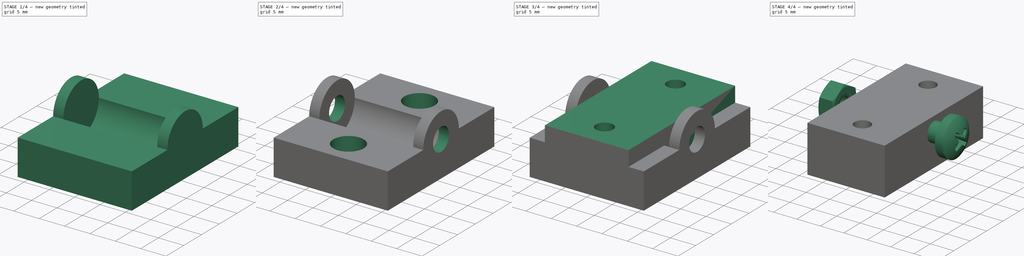
[diagram: build sequence overview — one tinted view per stage of 4, left to right]
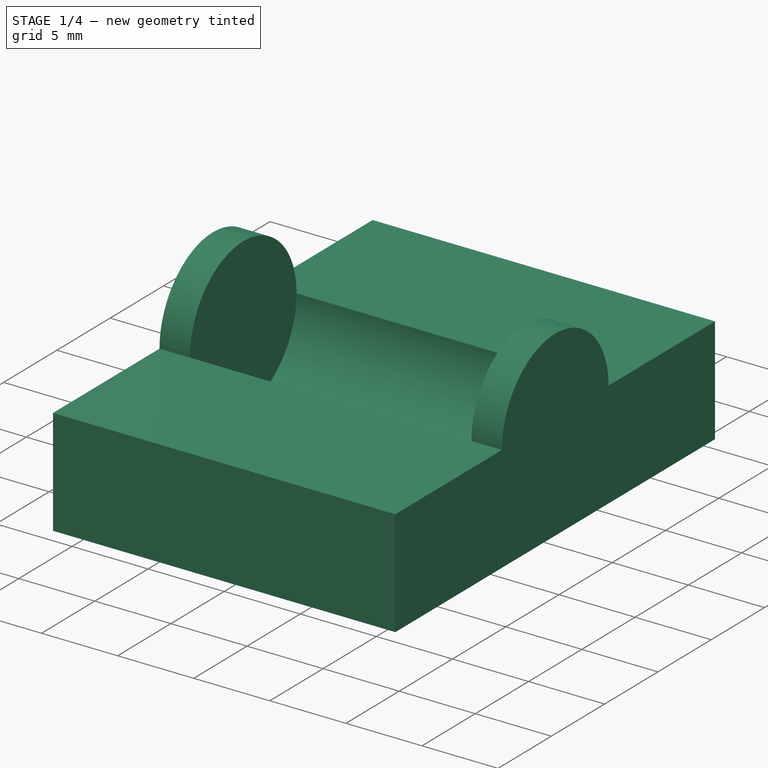
[diagram: stage 1 of 4 — iso view after this stage's code; geometry added in this stage tinted green]
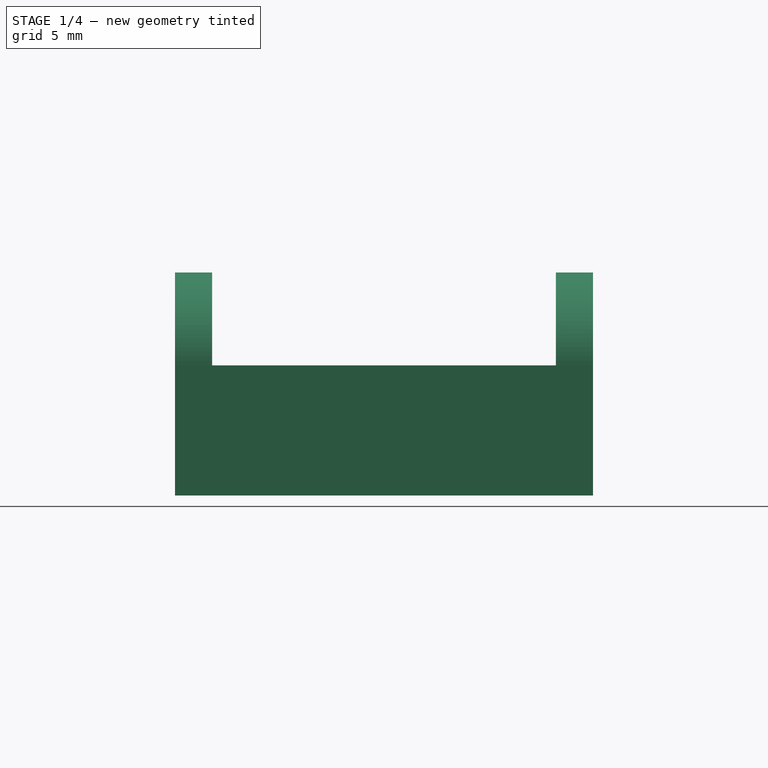
[diagram: stage 1 of 4 — front view after this stage's code; geometry added in this stage tinted green]
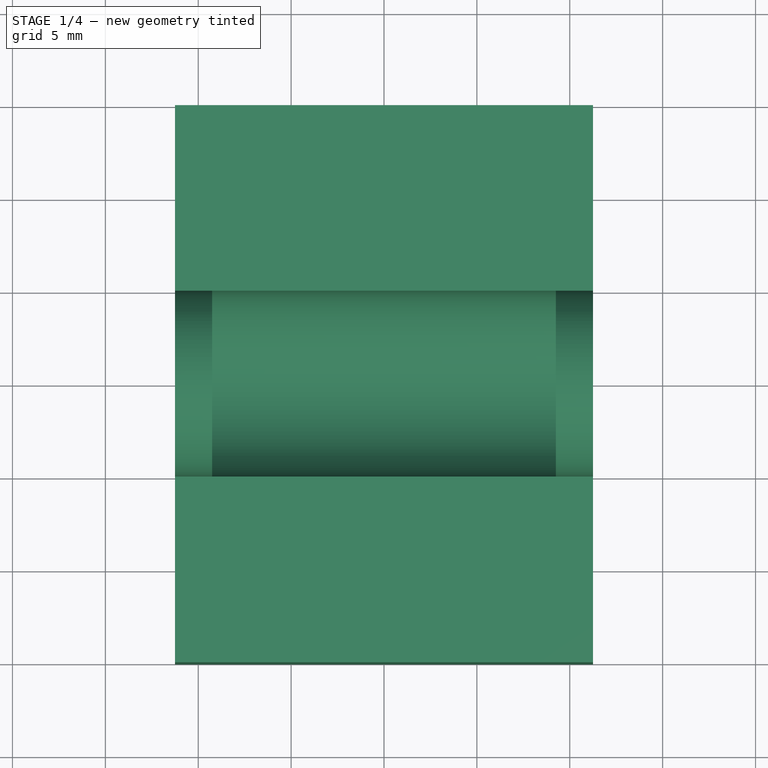
[diagram: stage 1 of 4 — top view after this stage's code; geometry added in this stage tinted green]
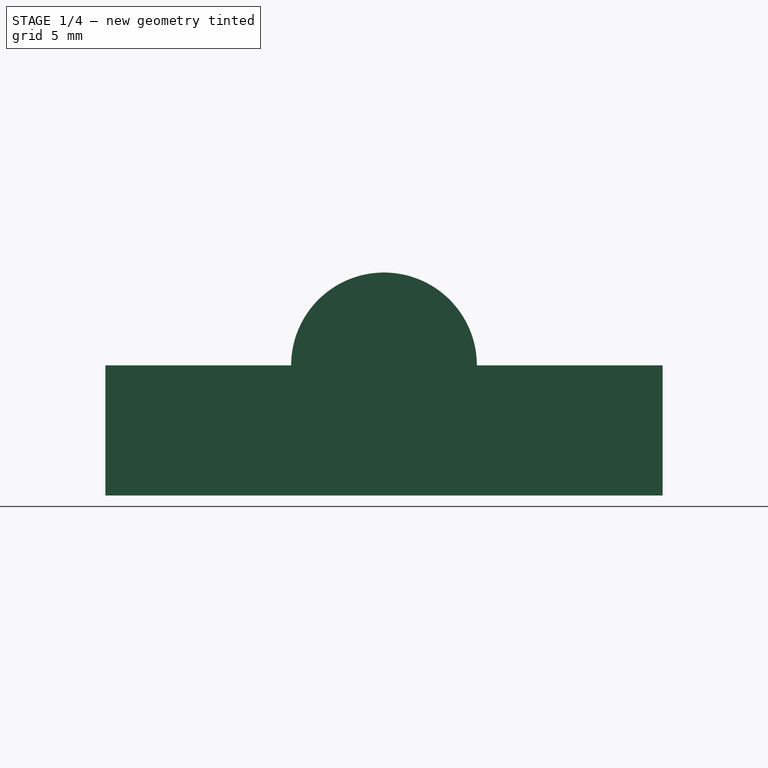
[diagram: stage 1 of 4 — right view after this stage's code; geometry added in this stage tinted green]
FCSTD DOCUMENT  (FreeCAD 1.0RUnknown)
Label: Shadeset
License: All rights reserved
LicenseURL: http://en.wikipedia.org/wiki/All_rights_reserved
objects: Sketcher::SketchObject×8, PartDesign::CoordinateSystem×7, PartDesign::Plane×5, PartDesign::Hole×5, App::Link×4, App::DocumentObjectGroup×3, Part::FeaturePython×3, PartDesign::Pad×3, PartDesign::Body×3, App::FeaturePython×1, PartDesign::Pocket×1, PartDesign::Mirrored×1, App::Part×1
note: 63 computed .brp shape members not serialized (recipe doc carries the construction recipe); baked Part::Feature solids carry a one-line shape summary decoded from their .brp
EXTERNAL_REF file=Resources.FCStd obj=Spreadsheet
EXTERNAL_REF file=Shade.FCStd obj=Local_CS001
EXTERNAL_REF file=Shade.FCStd obj=Body003
EXTERNAL_REF file=Shade.FCStd obj=FilterFrameBottom_LCS_ShaftTop
EXTERNAL_REF file=Shade.FCStd obj=Local_CS
EXTERNAL_REF file=Shade.FCStd obj=Assembly

FEATURE [App::Link] Filter  label="Shade"
  AttachedBy = #FilterFrameBottom_LCS_ShaftTop
  AttachedTo = Spacer#Local_CS
  AttachmentOffset = pos=(0,0,0) rot=(0,0,1;3.14159rad)
  LinkPlacement = pos=(-2.75,0,7) rot=(0,-1,0;4.71239rad)
  LinkedObject = -> <external Shade.FCStd>#Assembly
  Placement = pos=(-2.75,0,7) rot=(0,-1,0;4.71239rad)
  SolverId = Asm4EE
  expr: Placement = Spacer.Placement * Shade#Local_CS.Placement * AttachmentOffset * Shade#FilterFrameBottom_LCS_ShaftTop.Placement ^ -1
FEATURE [PartDesign::Plane] DatumPlane001  label="PlaneSideOuter"
  AttachmentOffset = pos=(0,0,2) rot=(0,0,1;0rad)
  AttachmentSupport = -> [DatumPlane]
  Length = 60
  MapMode = 5
  Placement = pos=(11.25,0,0) rot=(0.57735,0.57735,0.57735;2.0944rad)
  ResizeMode = 0
  Width = 60
FEATURE [Sketcher::SketchObject] Sketch002  label="SketchHole"
  ArcFitTolerance = 0
  AttachmentSupport = -> [DatumPlane001]
  FullyConstrained = true
  MakeInternals = false
  MapMode = 5
  Placement = pos=(11.25,0,0) rot=(0.57735,0.57735,0.57735;2.0944rad)
  expr: Constraints[1] = <<Dimensions>>.shade_shaft_diameter
  expr: Constraints[2] = <<Dimensions>>.shade_shaft_diameter + 2 mm + 1 mm
  sketch-geometry (1):
    g0: Circle CenterX=0 CenterY=7 CenterZ=0 NormalX=0 NormalY=0 NormalZ=1 AngleXU=0 Radius=2
  constraints (3):
    c: PointOnObject(g0,g-2)
    c: Diameter(g0) = 4
    c: DistanceY(g-1,g0) = 7
FEATURE [Sketcher::SketchObject] Sketch001  label="SketchBase"
  ArcFitTolerance = 0
  AttachmentSupport = -> [YZ_Plane001]
  ExternalGeometry = -> [Sketch002]
  FullyConstrained = true
  MakeInternals = false
  MapMode = 5
  Placement = pos=(0,0,0) rot=(0.57735,0.57735,0.57735;2.0944rad)
  sketch-geometry (6):
    g0: LineSegment StartX=-15 StartY=0 StartZ=0 EndX=15 EndY=0 EndZ=0
    g1: ArcOfCircle CenterX=-1.3e-15 CenterY=7 CenterZ=0 NormalX=0 NormalY=0 NormalZ=1 AngleXU=0 Radius=5 StartAngle=0 EndAngle=3.14159
    g2: LineSegment StartX=-5 StartY=7 StartZ=0 EndX=-15 EndY=7 EndZ=0
    g3: LineSegment StartX=-15 StartY=7 StartZ=0 EndX=-15 EndY=0 EndZ=0
    g4: LineSegment StartX=5 StartY=7 StartZ=0 EndX=15 EndY=7 EndZ=0
    g5: LineSegment StartX=15 StartY=7 StartZ=0 EndX=15 EndY=0 EndZ=0
  constraints (18):
    c: Coincident(g1,g-3)
    c: Coincident(g2,g3)
    c: Coincident(g3,g0)
    c: Vertical(g3)
    c: Coincident(g4,g5)
    c: Coincident(g5,g0)
    c: Coincident(g4,g1)
    c: Coincident(g2,g1)
    c: Horizontal(g2)
    c: Perpendicular(g1,g2)
    c: Perpendicular(g1,g4)
    c: Horizontal(g1,g1)
    c: Diameter(g1) = 10
    c: Distance(g2) = 10
    c: Equal(g2,g4)
    c: Vertical(g5)
    c: PointOnObject(g0,g-1)
    c: PointOnObject(g0,g-1)
FEATURE [PartDesign::CoordinateSystem] Local_CS  label="LCS_ShaftEnd"
  AttacherType = Attacher::AttachEngine3D
  AttachmentOffset = pos=(0,0,-2) rot=(0,0,1;0rad)
  AttachmentSupport = -> [Sketch002]
  MapMode = 11
  Placement = pos=(9.25,0,7) rot=(0.707107,0,0.707107;3.14159rad)
FEATURE [PartDesign::CoordinateSystem] Local_CS002  label="LCS_Nut"
  AttacherType = Attacher::AttachEngine3D
  AttachmentOffset = pos=(0,0,-20) rot=(1,0,0;3.14159rad)
  AttachmentSupport = -> [Local_CS]
  MapMode = 5
  Placement = pos=(-10.75,0,7) rot=(0,1,0;4.71239rad)
  expr: .AttachmentOffset.Base.z = -(<<Dimensions>>.shade_amount + 1) * <<Dimensions>>.shade_spacer_length - 2 mm
FEATURE [PartDesign::CoordinateSystem] Local_CS003  label="LCS_Bolt"
  AttacherType = Attacher::AttachEngine3D
  AttachmentSupport = -> [Sketch002]
  MapMode = 11
  Placement = pos=(11.25,0,7) rot=(0.707107,0,0.707107;3.14159rad)
FEATURE [PartDesign::Pad] Pad001
  Direction = (1,0,0)
  Length = 10
  Length2 = 10
  Offset = 2
  Placement = pos=(0,0,0) rot=(1,1,1;2.0944rad)
  Profile = -> Sketch001
  ReferenceAxis = -> Sketch001 [N_Axis]
  Suppressed = false
  Type = 3
  UpToFace = -> DatumPlane
FEATURE [PartDesign::Body] Body  label="Attachment"
  AllowCompound = false
  Group = -> [DatumPlane,DatumPlane001,DatumPlane002,Sketch001,Sketch002,Pad001,Sketch003,Pocket,Mirrored,Hole,Sketch004,Local_CS,Local_CS001,Local_CS002,Local_CS003,Hole001,Hole004]
  Origin = -> Origin001
  Tip = -> Hole004
FEATURE [App::DocumentObjectGroup] Parts
  Group = -> [Body,Body001,OffsetBlockHorizonShade]
FEATURE [Part::FeaturePython] Linear_Filter  label="Linear_Shade"  # Draft array (typed FeaturePython)
  ArrayType = Linear Array
  Axis = -> X_Axis
  AxisPlacement = pos=(0,0,0) rot=(0.57735,0.57735,0.57735;2.0944rad)
  Count = 2
  Index = 1
  LinearStep = -6
  PlacementList = 2 placements: [(-2.75,-2.22045e-15,7),(-8.75,-1.55431e-15,7)]
  Placer = pos=(0,0,-6) rot=(0,0,1;0rad)
  ScaleList = (2) [(1,1,1),(1,1,1)]
  Scaler = 1
  ShowElement = false
  SourceObject = -> Filter
  expr: .Placer.Base.z = LinearStep * Index
  expr: Count = <<Dimensions>>.shade_amount
  expr: LinearStep = -<<Dimensions>>.shade_spacer_length
FEATURE [App::Part] Assembly
  AssemblyType = Part::Link
  Group = -> [LCS_Origin,Constraints,Variables,Configurations,Attachment,Spacer,Screw,Nut,Filter,Linear_Filter]
  Origin = -> Origin
  Type = Assembly

RESOLVED EXTERNAL PARTS (link-assembly join: the EXTERNAL_REF files above that resolve inside this repo's crawl, each included once):
---- part Resources.FCStd = doc fcstd_cf5bf867b5fe ----
FCSTD DOCUMENT  (FreeCAD 0.21RUnknown)
Label: Resources
License: All rights reserved
LicenseURL: http://en.wikipedia.org/wiki/All_rights_reserved
objects: Spreadsheet::Sheet×3

FEATURE [Spreadsheet::Sheet] Spreadsheet  label="Dimensions"
  cells = A1='Name; B1='Dimension; C1='Constraints; D1='set by; A3='General; A4='Clearance Loose Fit; B4(clearance_loose_fit)==max(<<Config>>.clearance_loose_fit; 0 mm); C4='>= 0; D4='user; A5='Clearance Tight Fit; B5(clearance_tight_fit)==max(<<Config>>.clearance_tight_fit; 0 mm); C5='>= 0; D5='user; A6='Minimum Wall thickness; B6(minimum_wall_thickness)==max(<<Config>>.minimum_wall_thickness; 0 mm); C6='>= 0; D6='user; A7='View Center Horizontal Offset; B7(view_center_offset_hor)==max(<<Config>>.view_center_offset_hor; 0 mm); C7='>= 0; D7='user; A8='View Center Vertical Offset; B8(view_center_offset_vert)==max(<<Config>>.view_center_offset_vert; 0 mm); C8='>= 0; D8='user; A9='Spacing between Index arm and Frame; B9(index_arm_spacing)==max(<<Config>>.index_arm_spacing; 0 mm); C9='>= 0; D9='user; A10='Screw Hole Extra Depth; B10(screw_hole_extra_depth)==max(0 mm; Spreadsheet001.screw_hole_extra_depth); C10='>= 0; D10='user; A12='Handle; A13='Outer Width; B13(handle_outer_width)==max(<<Config>>.handle_width; minimum_wall_thickness); C13='>= Min wall thickness; D13='user; A14='Inner Width; B14(handle_inner_width)==max(handle_connector_screw_diameter + 2 * minimum_wall_thickness; handle_outer_width - handle_height / 6); C14='>= 2* Min wall thickness +  screw diameter; D14='calc; A15='Height; B15(handle_height)==max(<<Config>>.handle_height; minimum_wall_thickness); C15='>= Min wall thickness; D15='user; A16='Length; B16(handle_length)==max(<<Config>>.handle_length; minimum_wall_thickness); C16='>= Min wall thickness; D16='user; A17='Screw Type; B17(handle_screw_type)==<<Config>>.handle_screw_type; C17='TODO: restrict to M2.M3,M4,M6,M8; D17='user; A18='Connector Screw Diameter; B18(handle_connector_screw_diameter)==handle_screw_type == <<ConfiguartionTables>>.screws_name_m2 ? <<ConfiguartionTables>>.screws_ds_m2 : (handle_screw_type == <<ConfiguartionTables>>.screws_name_m3 ? <<ConfiguartionTables>>.screws_ds_m3 : (handle_screw_type == <<ConfiguartionTables>>.screws_name_m4 ? <<ConfiguartionTables>>.screws_ds_m4 : (handle_screw_type == <<ConfiguartionTables>>.screws_name_m6 ? <<ConfiguartionTables>>.screws_ds_m6 : (handle_screw_type == <<ConfiguartionTables>>.screws_name_m8 ? <<ConfiguartionTables>>.screws_ds_m8 : <<ConfiguartionTables>>.screws_ds_m3)))); C18='none; D18='calc; A19='Screw Countersink Diameter; B19(handle_countersink_diameter)==handle_screw_type == <<ConfiguartionTables>>.screws_name_m2 ? <<ConfiguartionTables>>.screws_dk_10642_m2 : (handle_screw_type == <<ConfiguartionTables>>.screws_name_m3 ? <<ConfiguartionTables>>.screws_dk_10642_m3 : (handle_screw_type == <<ConfiguartionTables>>.screws_name_m4 ? <<ConfiguartionTables>>.screws_dk_10642_m4 : (handle_screw_type == <<ConfiguartionTables>>.screws_name_m6 ? <<ConfiguartionTables>>.screws_dk_10642_m6 : (handle_screw_type == <<ConfiguartionTables>>.screws_name_m8 ? <<ConfiguartionTables>>.screws_dk_10642_m8 : <<ConfiguartionTables>>.screws_dk_10642_m3)))); C19='none; D19='calc; A20='Nut Width (S); B20(handle_nut_S)==handle_screw_type == <<ConfiguartionTables>>.screws_name_m2 ? <<ConfiguartionTables>>.nut_S_m2 : (handle_screw_type == <<ConfiguartionTables>>.screws_name_m3 ? <<ConfiguartionTables>>.nut_S_m3 : (handle_screw_type == <<ConfiguartionTables>>.screws_name_m4 ? <<ConfiguartionTables>>.nut_S_m4 : (handle_screw_type == <<ConfiguartionTables>>.screws_name_m6 ? <<ConfiguartionTables>>.nut_S_m6 : (handle_screw_type == <<ConfiguartionTables>>.screws_name_m8 ? <<ConfiguartionTables>>.nut_S_m8 : <<ConfiguartionTables>>.nut_S_m3)))); C20='none; D20='calc; A21='Nut Thickness (M); B21(handle_nut_M)==handle_screw_type == <<ConfiguartionTables>>.screws_name_m2 ? <<ConfiguartionTables>>.nut_M_m2 : (handle_screw_type == <<ConfiguartionTables>>.screws_name_m3 ? <<ConfiguartionTables>>.nut_M_m3 : (handle_screw_type == <<ConfiguartionTables>>.screws_name_m4 ? <<ConfiguartionTables>>.nut_M_m4 : (handle_screw_type == <<ConfiguartionTables>>.screws_name_m6 ? <<ConfiguartionTables>>.nut_M_m6 : (handle_screw_type == <<ConfiguartionTables>>.screws_name_m8 ? <<ConfiguartionTables>>.nut_M_m8 : <<ConfiguartionTables>>.nut_M_m3)))); C21='none; D21='calc; A22='Screw Length; B22(handle_screw_length)==max(0 mm; <<Config>>.handle_screw_length); C22='>= 0 ; D22='user; A23='Screw Hole Depth; B23(handle_screw_hole_depth)==handle_screw_length + screw_hole_extra_depth - frame_thickness; C23='none; D23='calc; A24='Handle Threaded Insert Diameter; B24(handle_ti_D)==handle_screw_type == <<ConfiguartionTables>>.screws_name_m2 ? <<ConfiguartionTables>>.ti_D_m2 : (handle_screw_type == <<ConfiguartionTables>>.screws_name_m3 ? <<ConfiguartionTables>>.ti_D_m3 : (handle_screw_type == <<ConfiguartionTables>>.screws_name_m4 ? <<ConfiguartionTables>>.ti_D_m4 : (handle_screw_type == <<ConfiguartionTables>>.screws_name_m6 ? <<ConfiguartionTables>>.ti_D_m6 : (handle_screw_type == <<ConfiguartionTables>>.screws_name_m8 ? <<ConfiguartionTables>>.ti_D_m8 : <<ConfiguartionTables>>.ti_D_m3)))); C24='none; D24='calc; A25='Handle Threaded Insert Depth; B25(handle_ti_L)==handle_screw_type == <<ConfiguartionTables>>.screws_name_m2 ? <<ConfiguartionTables>>.ti_L_m2 : (handle_screw_type == <<ConfiguartionTables>>.screws_name_m3 ? <<ConfiguartionTables>>.ti_L_m3 : (handle_screw_type == <<ConfiguartionTables>>.screws_name_m4 ? <<ConfiguartionTables>>.ti_L_m4 : (handle_screw_type == <<ConfiguartionTables>>.screws_name_m6 ? <<ConfiguartionTables>>.ti_L_m6 : (handle_screw_type == <<ConfiguartionTables>>.screws_name_m8 ? <<ConfiguartionTables>>.ti_L_m8 : <<ConfiguartionTables>>.ti_L_m3)))); C25='none; D25='calc; A27='Frame; A28='Width; B28(frame_width)==15 mm; A29='Thickness; B29(frame_thickness)==max(<<Config>>.frame_thickness; minimum_wall_thickness); C29='<= min wall thickness; D29='user; A32='Shaft Spacer Diameter; B32(spacer_diameter)==10 mm; A41='Mirrors; A42='Frame Thickness; B42(mirror_frame_thickness)==max(minimum_wall_thickness; <<Config>>.mirror_frame_thickness); C42='>= min wall thickness; D42='user; A43='Frame Width; B43(mirror_frame_width)==max(minimum_wall_thickness; <<Config>>.mirror_frame_width); C43='>= min wall thickness; D43='user; A44='Adjustment Screw type; B44(mirror_adjustment_screw_type)==<<Config>>.mirror_adjustment_screw_type; C44='TODO: restrict to M2.M3,M4,M6,M8; D44='user; A45='Adjustment Screw Diameter; B45(mirror_adjustment_screw_diameter)==mirror_adjustment_screw_type == <<ConfiguartionTables>>.screws_name_m2 ? <<ConfiguartionTables>>.screws_ds_m2 : (mirror_adjustment_screw_type == <<ConfiguartionTables>>.screws_name_m3 ? <<ConfiguartionTables>>.screws_ds_m3 : (mirror_adjustment_screw_type == <<ConfiguartionTables>>.screws_name_m4 ? <<ConfiguartionTables>>.screws_ds_m4 : (mirror_adjustment_screw_type == <<ConfiguartionTables>>.screws_name_m6 ? <<ConfiguartionTables>>.screws_ds_m6 : (mirror_adjustment_screw_type == <<ConfiguartionTables>>.screws_name_m8 ? <<ConfiguartionTables>>.screws_ds_m8 : <<ConfiguartionTables>>.screws_ds_m3)))); C45='none; D45='calc; A46='Adjustment Screw Threaded Insert Diameter; B46(mirror_adjustment_ti_D)==viewscope_screw_type == <<ConfiguartionTables>>.screws_name_m2 ? <<ConfiguartionTables>>.ti_D_m2 : (viewscope_screw_type == <<ConfiguartionTables>>.screws_name_m3 ? <<ConfiguartionTables>>.ti_D_m3 : (viewscope_screw_type == <<ConfiguartionTables>>.screws_name_m4 ? <<ConfiguartionTables>>.ti_D_m4 : (viewscope_screw_type == <<ConfiguartionTables>>.screws_name_m6 ? <<ConfiguartionTables>>.ti_D_m6 : (viewscope_screw_type == <<ConfiguartionTables>>.screws_name_m8 ? <<ConfiguartionTables>>.ti_D_m8 : <<ConfiguartionTables>>.ti_D_m3)))); C46='none; D46='calc; A47='Adjustment Screw Threaded Insert Depth; B47(mirror_adjustment_ti_L)==mirror_adjustment_screw_type == <<ConfiguartionTables>>.screws_name_m2 ? <<ConfiguartionTables>>.ti_L_m2 : (mirror_adjustment_screw_type == <<ConfiguartionTables>>.screws_name_m3 ? <<ConfiguartionTables>>.ti_L_m3 : (mirror_adjustment_screw_type == <<ConfiguartionTables>>.screws_name_m4 ? <<ConfiguartionTables>>.ti_L_m4 : (mirror_adjustment_screw_type == <<ConfiguartionTables>>.screws_name_m6 ? <<ConfiguartionTables>>.ti_L_m6 : (mirror_adjustment_screw_type == <<ConfiguartionTables>>.screws_name_m8 ? <<ConfiguartionTables>>.ti_L_m8 : <<ConfiguartionTables>>.ti_L_m3)))); C47='none; D47='calc; A49='Mirror Clip; A50='Clip Width; B50(mirror_clip_width)==max(<<Config>>.mirror_clip_width; mirror_adjustment_screw_diameter + 2 * minimum_wall_thickness); C50='>= screw hole diameter + 2* min wall thickness; D50='user; A51='Clip Thickness; B51(mirror_clip_thickness)==max(<<Config>>.mirror_clip_thickness; 0 mm); C51='>= 0; D51='user; A52='Minimum Bend Radius; B52(mirror_clip_minimum_bend_radius)==max(<<Config>>.mirror_clip_minimum_bend_radius; 0 mm); C52='>= 0; D52='user; A53='Mirror Edge Distance; B53(mirror_clip_edge_distance)==max(<<Config>>.mirror_clip_edge_distance; 0 mm); C53='>= 0; D53='user; A55='Horizon Mirror; A56='Mirror Width; B56(horizon_mirror_mirror_width)==max(<<Config>>.horizon_mirror_mirror_width; 0 mm); C56='>= 0; D56='user; A57='MIrror Height; B57(horizon_mirror_mirror_height)==max(<<Config>>.horizon_mirror_mirror_height; 0 mm); C57='>= 0; D57='user; A58='Mirror Thickness; B58(horizon_mirror_mirror_thickness)==max(<<Config>>.horizon_mirror_mirror_thickness; 0 mm); C58='>= 0; D58='user; A59='Base Width; B59(horizon_mirror_base_width)==3 mm; A60='Base Thickness; B60(horizon_mirror_base_thickness)==max(<<Config>>.horizon_mirror_base_thickness; minimum_wall_thickness); C60='>= min wall thickness; D60='user; A61='Frame Lip Width; B61(horizon_mirror_frame_lip_width)==max(<<Config>>.horizon_mirror_frame_lip_width; 0 mm); C61='>= 0mm; D61='user; A62='Attachment Screw Type; B62(horizon_mirror_screw_type)==<<Config>>.horizon_mirror_screw_type; C62='TODO: restrict to M2.M3,M4,M6,M8; D62='user; A63='Attachment Screw Diameter; B63(horizon_mirror_screw_diameter)==horizon_mirror_screw_type == <<ConfiguartionTables>>.screws_name_m2 ? <<ConfiguartionTables>>.screws_ds_m2 : (horizon_mirror_screw_type == <<ConfiguartionTables>>.screws_name_m3 ? <<ConfiguartionTables>>.screws_ds_m3 : (horizon_mirror_screw_type == <<ConfiguartionTables>>.screws_name_m4 ? <<ConfiguartionTables>>.screws_ds_m4 : (horizon_mirror_screw_type == <<ConfiguartionTables>>.screws_name_m6 ? <<ConfiguartionTables>>.screws_ds_m6 : (horizon_mirror_screw_type == <<ConfiguartionTables>>.screws_name_m8 ? <<ConfiguartionTables>>.screws_ds_m8 : <<ConfiguartionTables>>.screws_ds_m3)))); C63='none; D63='calc; A64='Connector Screw Countersink Diameter; B64(horizon_mirror_countersink_diameter)==horizon_mirror_screw_type == <<ConfiguartionTables>>.screws_name_m2 ? <<ConfiguartionTables>>.screws_dk_10642_m2 : (horizon_mirror_screw_type == <<ConfiguartionTables>>.screws_name_m3 ? <<ConfiguartionTables>>.screws_dk_10642_m3 : (horizon_mirror_screw_type == <<ConfiguartionTables>>.screws_name_m4 ? <<ConfiguartionTables>>.screws_dk_10642_m4 : (horizon_mirror_screw_type == <<ConfiguartionTables>>.screws_name_m6 ? <<ConfiguartionTables>>.screws_dk_10642_m6 : (horizon_mirror_screw_type == <<ConfiguartionTables>>.screws_name_m8 ? <<ConfiguartionTables>>.screws_dk_10642_m8 : <<ConfiguartionTables>>.screws_dk_10642_m3)))); C64='none; D64='calc; A65='Nut Width (S); B65(index_mirror_nut_S)==horizon_mirror_screw_type == <<ConfiguartionTables>>.screws_name_m2 ? <<ConfiguartionTables>>.nut_S_m2 : (horizon_mirror_screw_type == <<ConfiguartionTables>>.screws_name_m3 ? <<ConfiguartionTables>>.nut_S_m3 : (horizon_mirror_screw_type == <<ConfiguartionTables>>.screws_name_m4 ? <<ConfiguartionTables>>.nut_S_m4 : (horizon_mirror_screw_type == <<ConfiguartionTables>>.screws_name_m6 ? <<ConfiguartionTables>>.nut_S_m6 : (horizon_mirror_screw_type == <<ConfiguartionTables>>.screws_name_m8 ? <<ConfiguartionTables>>.nut_S_m8 : <<ConfiguartionTables>>.nut_S_m3)))); C65='none; D65='calc; A66='Offset; B66(horizon_mirror_offset)==80 mm; A67='Angle; B67(horizon_mirror_angle)==atan(view_center_offset_vert / horizon_mirror_offset) / 2; D67='calc; A68='Mirror Offset Origin; B68(horizon_mirror_mirror_offset)==view_center_offset_hor - horizon_mirror_mirror_height / 2; C68='none; D68='calc; A70='Index Mirror; A71='MIrror Width; B71(index_mirror_mirror_width)==max(<<Config>>.index_mirror_mirror_width; 0 mm); C71='>= 0; D71='user; A72='Mirror Height; B72(index_mirror_mirror_height)==max(<<Config>>.index_mirror_mirror_height; 0 mm); C72='>= 0; D72='user; A73='Mirror Thickness; B73(index_mirror_mirror_thickness)==max(<<Config>>.index_mirror_mirror_thickness; 0 mm); C73='>= 0; D73='user; A74='Base Diameter; B74(index_mirror_base_diameter)==index_mirror_mirror_width + 2 * mirror_frame_width; +232 more cells
FEATURE [Spreadsheet::Sheet] Spreadsheet001  label="Config"
  cells = A1='Name; B1='Value; C1='Description; A3='General; A4='Minimum Wall thickness; B4(minimum_wall_thickness)==0.5 mm; C4='General minimum Wall thickness. Walls get limited by this value; A5='Clearance Loose Fit; B5(clearance_loose_fit)==0.25 mm; C5='Clearance to achieve a loose fit (for interactions without tight tolerances). Does not apply to screws; A6='Clearance Tight Fit; B6(clearance_tight_fit)==0.15 mm; C6='Clearance to achieve a tight fit (for interactions with tight tolerances). Does not apply to screws; A7='View Center Horizontal Offset; B7(view_center_offset_hor)==30 mm; C7='Horizontal offset of the center of the view when looking through the scope. This is measured from the top of the frame; A8='View Center Vertical Offset; B8(view_center_offset_vert)==80 mm; C8='Vertical offset of the center of the view when looking through the scope. This is measured from the center of the shaft of the index arm; A9='Index Arm Space; B9(index_arm_spacing)==2 mm; C9='Spacing between index arm and frame; A10='Screw Hole Extra Depth; B10(screw_hole_extra_depth)==2 mm; C10='How much deeper is the hole than the actual screw length; A12='Frame; A13='Thickness; B13(frame_thickness)==2 mm; C13='Thickness of the frame; A17='Viewscope; A18='Collar Thickness; B18(viewscope_collar_thickness)==7.5 mm; C18='Thickness of the collar around the scope; A19='Collar Width; B19(viewscope_collar_width)==6 mm; C19='Width of the collar around the scope; A20='Inner Diameter; B20(viewscope_inner_diameter)==20 mm; C20='Minmum inner diameter of the scope; A21='Screw Type; B21(viewscope_screw_type)='M3; C21='Screw type to attach the view scope (Must be M2,M3,M4,M6 or M8); A22='Screw Head Support Thickness; B22(viewscope_screwhead_support_thickness)==4 mm; C22='Thickness of surface supporting the screwhead; A23='Thickness; B23(viewscope_wall_thickness)==1 mm; C23='Thickness of the scope itself; A24='Eyepiece Diameter; B24(viewscope_eye_diameter)==40 mm; C24='Diameter of the eyepiece; A28='Handle; A29='Screw Type; B29(handle_screw_type)='M3; C29='Screw type to attach the handle (Must be M2,M3,M4,M6 or M8); A30='Screw Length; B30(handle_screw_length)==10 mm; C30='Length of screw to attach handle; A31='Width; B31(handle_width)==10 mm; C31='Maximum width of the handle; A32='Length; B32(handle_length)==100 mm; C32='Length of the handle; A33='Height; B33(handle_height)==20 mm; C33='Height of the handle; A37='Mirrors; A38='Frame Thickness; B38(mirror_frame_thickness)==7 mm; C38='Thickness of the frames for both the index- and horizon mirror; A39='Frame Width; B39(mirror_frame_width)==3 mm; C39='Width of the frames for both the index- and horizon mirror; A40='Adjustment Screw Type; B40(mirror_adjustment_screw_type)='M3; C40='Type of the adjustment screws for the mirrors (Must be M2,M3,M4,M6 or M8); A42='Mirror Clip; A43='Clip Width; B43(mirror_clip_width)==6 mm; C43='WIdth of the spring clip to attach the mirrors; A44='Clip Thickness; B44(mirror_clip_thickness)==2 mm; C44='Thickness of the spring clip to attach the mirrors; A45='Minimum Bend Radius; B45(mirror_clip_minimum_bend_radius)==0.5 mm; C45='Minimum bend radius for the spring steel of the clip; A46='Mirror Edge Distance; B46(mirror_clip_edge_distance)==1 mm; A48='Index Mirror; A49='Mirror Width; B49(index_mirror_mirror_width)==50 mm; C49='Width of the index mirror; A50='Mirror Height; B50(index_mirror_mirror_height)==40 mm; C50='Height of the index mirror; A51='Mirror Thickness; B51(index_mirror_mirror_thickness)==3 mm; C51='Thickness of the index mirror; A52='Screw Type; B52(index_mirror_screw_type)='M3; C52='Type of the screws for attaching the mirror frame to the index arm (Must be M2,M3,M4,M6 or M8); A53='Base Thickness; B53(index_mirror_base_thickness)==1 mm; C53='Thickness of the base for the index mirror; A54='Screw Center Distance; B54(index_mirror_screw_center_distance)==18 mm; C54='Distance of attachmemt screws to shaft center; A56='Horizon Mirror; A57='Mirror Width; B57(horizon_mirror_mirror_width)==40 mm; C57='Width of the horizon mirror; A58='Mirror Height; B58(horizon_mirror_mirror_height)==50 mm; C58='Total Height of the horizon mirror. Half of this dimension is the actual mirror and the remaining half is just the glass; A59='Mirror Thickness; B59(horizon_mirror_mirror_thickness)==3 mm; C59='Thickness of the horizon mirror. The difference between the thickness of the glass and mirror are assumed to be insignificant; A60='Base Thickness; B60(horizon_mirror_base_thickness)==1 mm; C60='Thickness of the base for the horizon mirror; A61='Frame Lip Width; B61(horizon_mirror_frame_lip_width)==1 mm; C61='Width of the lip holding the horizon mirror in place; A62='Screw Type; B62(horizon_mirror_screw_type)='M3; C62='Type of the screws for attaching the mirror  to the frame (Must be M2,M3,M4,M6 or M8); A65='Bearing; A66='Type; B66(bearing_type)='608; C66='Type of bearing (Must be one of 608, 6000, 6001, 6002); A67='Housing DIameter; B67(bearing_housing_diameter)==45 mm; C67='Diameter of the housing for the bearing; A68='Housing Screw Type; B68(bearing_housing_screw_type)='M3; C68='Screw type to attach the bearing housing to the frame (Must be M2,M3,M4,M6 or M8); A69='Housing Screw Length; B69(bearing_housing_screw_length)==5 mm; C69='Length of screws to attach the bearing housing to the frame ; A70='Housing Minimum Thickness; B70(bearing_housing_min_thickness)==2 mm; C70='Minimum thickness of the bearing housing; A72='Shaft; A73='Base Thickness; B73(shaft_base_thickness)==1 mm; C73='Thickness of the base attaching the shaft to the index mirror and frame; A74='End Cover Screw Type; B74(shaft_end_cover_screw_type)='M3; C74='Screw type to attach the end cover to the shaft  (Must be M2,M3,M4,M6 or M8); A75='End Cover Screw Length; B75(shaft_end_cover_screw_length)==10 mm; C75='Length of screw to attach the end cover to the shaft; A78='Shades; A79='Spacing; B79(shade_spacing)==4 mm; C79='Spacing between filters in a set; A80='Frame Thickness; B80(shade_frame_thickness)==2 mm; C80='Thickness of frame (excluding thickness of the filter itself); A81='Shaft Screw Type; B81(shade_shaft_type)='M4; C81='Type of screw for shaft of the filter
FEATURE [Spreadsheet::Sheet] Spreadsheet002  label="ConfiguartionTables"
  BearingType = 0
  Type = 0
  bearing = 0
  cells = A1='Screws/Bolts; A2='Name; B2='Thread diameter; C2='Head diameter ISO 4762; D2='Head height ISO 10642; E2='Nut width (S); F2='Nut Thickness (M); G2='TI Depth; H2='TI Diameter; A4(screws_name_m2)='M2; B4(screws_ds_m2)==2 mm; C4(screws_dk_4762_m2)==3.8 mm; D4(screws_dk_10642_m2)==4.1 mm; E4(nut_S_m2)==4 mm; F4(nut_M_m2)==1.6 mm; G4(ti_L_m2)==4 mm; H4(ti_D_m2)==3.1 mm; A5(screws_name_m3)='M3; B5(screws_ds_m3)==3 mm; C5(screws_dk_4762_m3)==5.5 mm; D5(screws_dk_10642_m3)==6.72 mm; E5(nut_S_m3)==5.5 mm; F5(nut_M_m3)==2.4 mm; G5(ti_L_m3)==4 mm; H5(ti_D_m3)==3.9 mm; A6(screws_name_m4)='M4; B6(screws_ds_m4)==4 mm; C6(screws_dk_4762_m4)==7 mm; D6(screws_dk_10642_m4)==8.96 mm; E6(nut_S_m4)==7 mm; F6(nut_M_m4)==3.2 mm; G6(ti_L_m4)==5 mm; H6(ti_D_m4)==5.5 mm; A7(screws_name_m6)='M6; B7(screws_ds_m6)==6 mm; C7(screws_dk_4762_m6)==10 mm; D7(screws_dk_10642_m6)==13.44 mm; E7(nut_S_m6)==10 mm; F7(nut_M_m6)==5.2 mm; A8(screws_name_m8)='M8; B8(screws_ds_m8)==8 mm; C8(screws_dk_4762_m8)==13 mm; D8(screws_dk_10642_m8)==17.92 mm; E8(nut_S_m8)==13 mm; F8(nut_M_m8)==6.8 mm; M9='s; B16='Bearing; B17='Type; C17='bore diameter (d); D17='outside diameter (D); E17='Abutment diameter, shaft shoulder (da); F17='Housing shoulder diameter (Da); G17='Width (B); B18(bearing_type)==hiddenref(.bearing.String); C18(bearing_d)==.C19; D18(bearing_D)==.D19; E18(bearing_da)==.E19; F18(bearing_Da)==.F19; G18(bearing_B)==.G19; B19='608; C19==8 mm; D19==22 mm; E19==10 mm; F19==20 mm; G19==7 mm; B20='6000; C20==10 mm; D20==26 mm; E20==12 mm; F20==24 mm; G20==8 mm; B21='6001; C21==12 mm; D21==28 mm; E21==14 mm; F21==26 mm; G21==8 mm; B22='6002; C22==15 mm; D22==32 mm; E22==17 mm; F22==30 mm; G22==9 mm
  expr: .BearingType.Enum = cells[<<F4:|>>]
  expr: .Type.Enum = cells[<<F4:|>>]
  expr: .bearing.Enum = cells[<<B19:|>>]
  expr: .cells.Bind.C18.G18 = tuple(.cells; <<C>> + str(hiddenref(bearing) + 19); <<G>> + str(hiddenref(bearing) + 19))
  expr: BearingType = <<Config>>.bearing_type
---- part Shade.FCStd = doc fcstd_0a25c6916267 ----
FCSTD DOCUMENT  (FreeCAD 1.0RUnknown)
Label: Shade
License: All rights reserved
LicenseURL: http://en.wikipedia.org/wiki/All_rights_reserved
objects: PartDesign::CoordinateSystem×12, Sketcher::SketchObject×10, PartDesign::Pad×6, PartDesign::Body×6, PartDesign::Plane×4, App::Link×4, PartDesign::SubShapeBinder×4, App::DocumentObjectGroup×3, PartDesign::Hole×2, PartDesign::Pocket×2, PartDesign::PolarPattern×2, PartDesign::FeatureBase×2, PartDesign::Mirrored×1, PartDesign::Line×1, App::FeaturePython×1, PartDesign::Chamfer×1, Part::FeaturePython×1, App::Part×1
note: 91 computed .brp shape members not serialized (recipe doc carries the construction recipe); baked Part::Feature solids carry a one-line shape summary decoded from their .brp
EXTERNAL_REF file=Resources.FCStd obj=Spreadsheet

FEATURE [Sketcher::SketchObject] Sketch
  ArcFitTolerance = 0
  AttachmentSupport = -> [YZ_Plane]
  FullyConstrained = true
  MakeInternals = false
  MapMode = 5
  Placement = pos=(0,0,0) rot=(0.57735,0.57735,0.57735;2.0944rad)
  expr: Constraints[15] = <<Dimensions>>.shade_clip_length / 2
  sketch-geometry (10):
    g0: LineSegment StartX=-1 StartY=0 StartZ=0 EndX=-1 EndY=-3.5 EndZ=0
    g1: LineSegment StartX=-2.5 StartY=-2.58816 StartZ=0 EndX=-2 EndY=-2.5 EndZ=0
    g2: LineSegment StartX=-2 StartY=-2.5 StartZ=0 EndX=-2 EndY=0 EndZ=0
    g3: LineSegment StartX=-2 StartY=0 StartZ=0 EndX=-2.5 EndY=0.0881635 EndZ=0
    g4: LineSegment StartX=-2.5 StartY=-2.58816 StartZ=0 EndX=-2.5 EndY=-3.5 EndZ=0
    g5: LineSegment StartX=-2.5 StartY=-3.5 StartZ=0 EndX=-1 EndY=-3.5 EndZ=0
    g6: LineSegment StartX=-2.5 StartY=0.0881635 StartZ=0 EndX=-2.5 EndY=1 EndZ=0
    g7: LineSegment StartX=-2.5 StartY=1 StartZ=0 EndX=0 EndY=1 EndZ=0
    g8: LineSegment StartX=-1 StartY=0 StartZ=0 EndX=0 EndY=0 EndZ=0
    g9: LineSegment StartX=0 StartY=0 StartZ=0 EndX=0 EndY=1 EndZ=0
  constraints (29):
    c: Vertical(g0)
    c: Coincident(g1,g2)
    c: Vertical(g2)
    c: Coincident(g2,g3)
    c: DistanceX(g2,g0) = 1
    c: DistanceX(g1,g1) = 0.5
    c: DistanceY(g2,g2) = 2.5
    c: PointOnObject(g0,g-1)
    c: PointOnObject(g2,g-1)
    c: Coincident(g4,g1)
    c: Vertical(g4)
    c: Coincident(g5,g4)
    c: Angle(g3,g2) = 1.74533
    c: DistanceX(g3,g2) = 0.5
    c: Angle(g2,g1) = 1.74533
    c: DistanceX(g2,g-1) = 2
    c: Coincident(g6,g3)
    c: Vertical(g6)
    c: Coincident(g7,g6)
    c: Horizontal(g7)
    c: Coincident(g8,g0)
    c: Coincident(g8,g-1)
    c: Coincident(g9,g8)
    c: Coincident(g9,g7)
    c: Vertical(g9)
    c: DistanceY(g8,g7) = 1
    c: Coincident(g0,g5)
    c: Horizontal(g5)
    c: DistanceY(g4,g1) = 1
FEATURE [PartDesign::Pad] Pad
  Direction = (1,0,0)
  Length = 2
  Length2 = 10
  Midplane = true
  Placement = pos=(0,0,0) rot=(1,1,1;2.0944rad)
  Profile = -> Sketch
  ReferenceAxis = -> Sketch [N_Axis]
  Suppressed = false
  Type = 0
  expr: Length = <<Dimensions>>.shade_clip_width
FEATURE [PartDesign::Mirrored] Mirrored
  BaseFeature = -> Pad
  MirrorPlane = -> Sketch [V_Axis]
  Originals = -> [Pad]
  Placement = pos=(0,0,0) rot=(1,1,1;2.0944rad)
  Refine = true
  Suppressed = false
  TransformMode = 0
FEATURE [Sketcher::SketchObject] Sketch008  label="Sketch_Shaft001"
  ArcFitTolerance = 0
  AttachmentSupport = -> [DatumPlane002]
  FullyConstrained = true
  MakeInternals = false
  MapMode = 5
  Placement = pos=(0,0,1) rot=(0,0,1;0rad)
  expr: Constraints[1] = <<Dimensions>>.shade_shaft_diameter
  sketch-geometry (1):
    g0: Circle CenterX=0 CenterY=0 CenterZ=0 NormalX=0 NormalY=0 NormalZ=1 AngleXU=0 Radius=2
  constraints (2):
    c: Coincident(g0,g-1)
    c: Diameter(g0) = 4
FEATURE [Sketcher::SketchObject] Sketch009  label="Sketch_Spacer001"
  ArcFitTolerance = 0
  AttachmentSupport = -> [DatumPlane002]
  FullyConstrained = true
  MakeInternals = false
  MapMode = 5
  Placement = pos=(0,0,1) rot=(0,0,1;0rad)
  expr: Constraints[1] = <<Dimensions>>.shade_shaft_diameter + 4 mm
  sketch-geometry (1):
    g0: Circle CenterX=0 CenterY=0 CenterZ=0 NormalX=0 NormalY=0 NormalZ=1 AngleXU=0 Radius=4
  constraints (2):
    c: Coincident(g0,g-1)
    c: Diameter(g0) = 8
FEATURE [Sketcher::SketchObject] Sketch003  label="Sketch_Shade"
  ArcFitTolerance = 0
  AttachmentSupport = -> [DatumPlane003]
  ExternalGeometry = -> [Sketch009]
  FullyConstrained = true
  MakeInternals = false
  MapMode = 5
  expr: Constraints[16] = <<Dimensions>>.shade_height
  expr: Constraints[17] = <<Dimensions>>.shade_width
  sketch-geometry (13):
    g0: LineSegment StartX=-41.182 StartY=37.182 StartZ=0 EndX=-41.182 EndY=5.18198 EndZ=0
    g1: LineSegment StartX=-37.182 StartY=1.18198 StartZ=0 EndX=-5.18198 EndY=1.18198 EndZ=0
    g2: LineSegment StartX=-1.18198 StartY=5.18198 StartZ=0 EndX=-1.18198 EndY=37.182 EndZ=0
    g3: LineSegment StartX=-5.18198 StartY=41.182 StartZ=0 EndX=-37.182 EndY=41.182 EndZ=0
    g4: GeomPoint [constr] X=0 Y=0 Z=0
    g5: LineSegment StartX=-41.182 StartY=37.182 StartZ=0 EndX=-37.182 EndY=41.182 EndZ=0
    g6: LineSegment StartX=-5.18198 StartY=41.182 StartZ=0 EndX=-1.18198 EndY=37.182 EndZ=0
    g7: LineSegment StartX=-5.18198 StartY=1.18198 StartZ=0 EndX=-1.18198 EndY=5.18198 EndZ=0
    g8: LineSegment StartX=-41.182 StartY=5.18198 StartZ=0 EndX=-37.182 EndY=1.18198 EndZ=0
    g9: LineSegment [constr] StartX=-3.18198 StartY=3.18198 StartZ=0 EndX=-2.82843 EndY=2.82843 EndZ=0
    g10: LineSegment [constr] StartX=-5.18198 StartY=1.18198 StartZ=0 EndX=-5.18198 EndY=0 EndZ=0
    g11: LineSegment [constr] StartX=-1.18198 StartY=5.18198 StartZ=0 EndX=0 EndY=5.18198 EndZ=0
    g12: GeomPoint X=-21.182 Y=21.182 Z=0
  constraints (35):
    c: Horizontal(g1)
    c: Horizontal(g3)
    c: Vertical(g0)
    c: Vertical(g2)
    c: Coincident(g4,g-1)
    c: Coincident(g0,g8)
    c: Coincident(g1,g8)
    c: Coincident(g0,g5)
    c: Coincident(g3,g5)
    c: Coincident(g3,g6)
    c: Coincident(g2,g6)
    c: Coincident(g2,g7)
    c: Coincident(g1,g7)
    c: Equal(g7,g6)
    c: Equal(g6,g5)
    c: Equal(g5,g8)
    c: DistanceY(g1,g3) = 40
    c: DistanceX(g0,g2) = 40
    c: Equal(g1,g3)
    c: Equal(g0,g2)
    c: Angle(g8,g0) = 2.35619
    c: Angle(g0,g5) = 2.35619
    c: DistanceY(g1,g0) = 4
    c: PointOnObject(g9,g-3)
    c: Symmetric(g1,g2,g9)
    c: Perpendicular(g9,g7)
    c: Coincident(g10,g1)
    c: PointOnObject(g10,g-1)
    c: Vertical(g10)
    c: Coincident(g11,g2)
    c: PointOnObject(g11,g-2)
    c: Horizontal(g11)
    c: Equal(g11,g10)
    c: Distance(g9) = 0.5
    c: Symmetric(g0,g2,g12)
FEATURE [Sketcher::SketchObject] Sketch011
  ArcFitTolerance = 0
  AttachmentSupport = -> [DatumPlane002]
  ExternalGeometry = -> [Sketch003]
  FullyConstrained = true
  MakeInternals = false
  MapMode = 5
  Placement = pos=(0,0,1) rot=(0,0,1;0rad)
  expr: Constraints[13] = <<Dimensions>>.clearance_loose_fit
  expr: Constraints[7] = <<Dimensions>>.shade_clip_width + 2 * <<Dimensions>>.clearance_tight_fit
  expr: Constraints[8] = <<Dimensions>>.shade_clip_length + 2 * <<Dimensions>>.clearance_tight_fit
  sketch-geometry (7):
    g0: LineSegment StartX=-41.432 StartY=19.032 StartZ=0 EndX=-41.432 EndY=23.332 EndZ=0
    g1: LineSegment StartX=-41.432 StartY=23.332 StartZ=0 EndX=-43.732 EndY=23.332 EndZ=0
    g2: LineSegment StartX=-43.732 StartY=23.332 StartZ=0 EndX=-43.732 EndY=19.032 EndZ=0
    g3: LineSegment StartX=-43.732 StartY=19.032 StartZ=0 EndX=-41.432 EndY=19.032 EndZ=0
    g4: GeomPoint [constr] X=-41.182 Y=21.182 Z=0
    g5: LineSegment [constr] StartX=-41.432 StartY=21.182 StartZ=0 EndX=-41.182 EndY=21.182 EndZ=0
    g6: GeomPoint X=-42.582 Y=21.182 Z=0
  constraints (16):
    c: Coincident(g1,g0)
    c: Coincident(g2,g1)
    c: Coincident(g3,g0)
    c: Coincident(g3,g2)
    c: Perpendicular(g1,g2)
    c: Perpendicular(g1,g0)
    c: Perpendicular(g3,g0)
    c: Distance(g3) = 2.3
    c: Distance(g2) = 4.3
    c: Symmetric(g-3,g-3,g4)
    c: Coincident(g5,g4)
    c: Symmetric(g0,g0,g5)
    c: Horizontal(g5)
    c: Distance(g5) = 0.25
    c: Parallel(g0,g-3)
    c: Symmetric(g1,g0,g6)
FEATURE [PartDesign::Line] DatumLine  label="Line_FilterCenter"
  AttacherType = Attacher::AttachEngineLine
  AttachmentSupport = -> [Sketch003,DatumPlane003]
  Length = 20
  MapMode = 46
  Placement = pos=(-21.182,21.182,0) rot=(0,0,1;3.14159rad)
  ResizeMode = 0
FEATURE [Sketcher::SketchObject] Sketch010  label="Sketch_Frame"
  ArcFitTolerance = 0
  AttachmentSupport = -> [DatumPlane003]
  ExternalGeometry = -> [Sketch009,Sketch003,DatumLine]
  FullyConstrained = true
  MakeInternals = false
  MapMode = 5
  sketch-geometry (21):
    g0: LineSegment StartX=-36.3536 StartY=39.182 StartZ=0 EndX=-6.01041 EndY=39.182 EndZ=0
    g1: LineSegment StartX=-3.18198 StartY=36.3536 StartZ=0 EndX=-3.18198 EndY=6.01041 EndZ=0
    g2: LineSegment StartX=-6.01041 StartY=3.18198 StartZ=0 EndX=-36.3536 EndY=3.18198 EndZ=0
    g3: LineSegment StartX=-39.182 StartY=6.01041 StartZ=0 EndX=-39.182 EndY=36.3536 EndZ=0
    g4: LineSegment StartX=-42.364 StartY=42.364 StartZ=0 EndX=0 EndY=42.364 EndZ=0
    g5: LineSegment StartX=-42.364 StartY=5e-16 StartZ=0 EndX=-42.364 EndY=42.364 EndZ=0
    g6: LineSegment StartX=2e-16 StartY=42.364 StartZ=0 EndX=2e-16 EndY=4 EndZ=0
    g7: LineSegment StartX=-4 StartY=5e-16 StartZ=0 EndX=-42.364 EndY=5e-16 EndZ=0
    g8: ArcOfCircle CenterX=0 CenterY=0 CenterZ=0 NormalX=0 NormalY=0 NormalZ=1 AngleXU=0 Radius=4 StartAngle=1.5708 EndAngle=3.14159
    g9: LineSegment StartX=-39.182 StartY=36.3536 StartZ=0 EndX=-36.3536 EndY=39.182 EndZ=0
    g10: LineSegment StartX=-6.01041 StartY=39.182 StartZ=0 EndX=-3.18198 EndY=36.3536 EndZ=0
    g11: LineSegment StartX=-3.18198 StartY=6.01041 StartZ=0 EndX=-6.01041 EndY=3.18198 EndZ=0
    g12: LineSegment StartX=-39.182 StartY=6.01041 StartZ=0 EndX=-36.3536 EndY=3.18198 EndZ=0
    g13: LineSegment [constr] StartX=-39.182 StartY=36.3536 StartZ=0 EndX=-41.182 EndY=36.3536 EndZ=0
    g14: LineSegment [constr] StartX=-36.3536 StartY=39.182 StartZ=0 EndX=-36.3536 EndY=41.182 EndZ=0
    g15: LineSegment [constr] StartX=-39.182 StartY=36.3536 StartZ=0 EndX=-40.5962 EndY=37.7678 EndZ=0
    g16: LineSegment [constr] StartX=-6.01041 StartY=39.182 StartZ=0 EndX=-4.59619 EndY=40.5962 EndZ=0
    g17: LineSegment [constr] StartX=-3.18198 StartY=36.3536 StartZ=0 EndX=-1.18198 EndY=36.3536 EndZ=0
    g18: LineSegment [constr] StartX=-3.18198 StartY=6.01041 StartZ=0 EndX=-1.76777 EndY=4.59619 EndZ=0
    g19: LineSegment [constr] StartX=-6.01041 StartY=3.18198 StartZ=0 EndX=-6.01041 EndY=1.18198 EndZ=0
    g20: LineSegment [constr] StartX=-41.182 StartY=5.18198 StartZ=0 EndX=-39.7678 EndY=6.59619 EndZ=0
  constraints (63):
    c: Horizontal(g0)
    c: Horizontal(g2)
    c: Vertical(g1)
    c: Vertical(g3)
    c: Horizontal(g4)
    c: Vertical(g5)
    c: Vertical(g6)
    c: Horizontal(g7)
    c: PointOnObject(g6,g-3)
    c: Coincident(g8,g-3)
    c: Coincident(g8,g7)
    c: Coincident(g8,g6)
    c: Coincident(g3,g9)
    c: Coincident(g0,g9)
    c: Parallel(g-7,g9)
    c: Coincident(g13,g3)
    c: PointOnObject(g13,g-6)
    c: Horizontal(g13)
    c: Coincident(g14,g0)
    c: PointOnObject(g14,g-8)
    c: Vertical(g14)
    c: Coincident(g15,g3)
    c: PointOnObject(g15,g-7)
    c: Perpendicular(g-7,g15)
    c: Coincident(g3,g12)
    c: Coincident(g2,g12)
    c: Coincident(g1,g11)
    c: Coincident(g2,g11)
    c: Coincident(g0,g10)
    c: Coincident(g1,g10)
    c: Equal(g13,g15)
    c: Equal(g15,g14)
    c: Distance(g14) = 2
    c: Parallel(g10,g-9)
    c: Coincident(g16,g0)
    c: PointOnObject(g16,g-9)
    c: Perpendicular(g-9,g16)
    c: Equal(g16,g14)
    c: Coincident(g17,g1)
    c: PointOnObject(g17,g-5)
    c: Horizontal(g17)
    c: Equal(g17,g16)
    c: Parallel(g-11,g11)
    c: Coincident(g18,g1)
    c: PointOnObject(g18,g-11)
    c: Perpendicular(g18,g-11)
    c: Equal(g18,g17)
    c: Coincident(g19,g2)
    c: PointOnObject(g19,g-4)
    c: Vertical(g19)
    c: Equal(g19,g18)
    c: Parallel(g-10,g12)
    c: Coincident(g20,g-10)
    c: PointOnObject(g20,g12)
    c: Perpendicular(g-10,g20)
    c: Equal(g20,g13)
    c: PointOnObject(g7,g-1)
    c: PointOnObject(g6,g-2)
    c: DistanceX(g5,g6) = 42.364  'total_width'
    c: Coincident(g5,g7)
    c: Coincident(g4,g5)
    c: Symmetric(g4,g8,g-12)
    c: Coincident(g6,g4)
FEATURE [PartDesign::Pad] Pad005
  Direction = (0,0,1)
  Length = 10
  Length2 = 10
  Profile = -> Sketch010
  ReferenceAxis = -> Sketch010 [N_Axis]
  Suppressed = false
  Type = 3
  UpToFace = -> DatumPlane002
FEATURE [PartDesign::CoordinateSystem] Local_CS  label="LCS_Bottom"
  AttacherType = Attacher::AttachEngine3D
  AttachmentSupport = -> [X_Axis003]
  MapMode = 2
FEATURE [PartDesign::CoordinateSystem] Local_CS001  label="LCS_Top"
  AttacherType = Attacher::AttachEngine3D
  AttachmentOffset = pos=(0,0,6) rot=(0,0,1;0rad)
  AttachmentSupport = -> [X_Axis003]
  MapMode = 2
  Placement = pos=(0,0,6) rot=(0,0,1;0rad)
  expr: .AttachmentOffset.Base.z = <<Dimensions>>.shade_spacer_length
FEATURE [PartDesign::Body] Body003  label="Spacer"
  AllowCompound = false
  Group = -> [Sketch006,Sketch007,Pad003,Hole,Local_CS,Local_CS001]
  Origin = -> Origin003
  Tip = -> Hole
FEATURE [PartDesign::CoordinateSystem] LCS_Origin
  AttacherType = Attacher::AttachEngine3D
  AttachmentSupport = -> [X_Axis004]
  MapMode = 2
FEATURE [App::DocumentObjectGroup] Constraints
FEATURE [App::FeaturePython] Variables  # WARN: FeaturePython — macro-defined, semantics opaque (R4)
  Type = App::PropertyContainer
FEATURE [App::DocumentObjectGroup] Configurations
FEATURE [App::Link] FilterFrameTop  label="ShadeFrameTop001"
  AttachedBy = #DatumPlane
  AttachedTo = FilterFrameBottom#Local_CS002
  LinkPlacement = pos=(0,0,6) rot=(0,0,1;0rad)
  LinkedObject = -> Body001
  Placement = pos=(0,0,6) rot=(0,0,1;0rad)
  SolverId = Asm4EE
  expr: Placement = FilterFrameBottom.Placement * Local_CS002.Placement * AttachmentOffset * DatumPlane.Placement ^ -1
FEATURE [PartDesign::SubShapeBinder] Binder003
  BindCopyOnChange = 0
  BindMode = 0
  ClaimChildren = false
  Context = -> Body004 [Binder003.]
  Fuse = false
  MakeFace = true
  OffsetFill = false
  OffsetIntersection = false
  OffsetJoinType = 0
  OffsetOpenResult = false
  PartialLoad = false
  Relative = true
  Support = -> [Body002[Sketch008.]]
  _Version = 2
FEATURE [PartDesign::SubShapeBinder] Binder004
  BindCopyOnChange = 0
  BindMode = 0
  ClaimChildren = false
  Context = -> Body004 [Binder004.]
  Fuse = false
  MakeFace = true
  OffsetFill = false
  OffsetIntersection = false
  OffsetJoinType = 0
  OffsetOpenResult = false
  PartialLoad = false
  Relative = true
  Support = -> [Body002[Sketch009.]]
  _Version = 2
FEATURE [PartDesign::CoordinateSystem] Local_CS002  label="LCS_ShaftTop"
  AttacherType = Attacher::AttachEngine3D
  AttachmentSupport = -> [Binder003]
  MapMode = 5
  Placement = pos=(0,0,1) rot=(0,0,1;0rad)
FEATURE [PartDesign::CoordinateSystem] Local_CS003  label="LCS_ShaftBottom"
  AttacherType = Attacher::AttachEngine3D
  AttachmentOffset = pos=(0,0,-6) rot=(0,0,1;0rad)
  AttachmentSupport = -> [Binder003]
  MapMode = 5
  Placement = pos=(0,0,-5) rot=(0,0,1;0rad)
  expr: .AttachmentOffset.Base.z = -<<Dimensions>>.shade_spacer_length
FEATURE [App::Link] FilterFrameBottom  label="ShadeFrameBottom001"
  AttachedBy = #Local_CS003
  AttachedTo = Parent Assembly#LCS_Origin
  LinkPlacement = pos=(0,0,5) rot=(0,0,1;0rad)
  LinkedObject = -> Body004
  Placement = pos=(0,0,5) rot=(0,0,1;0rad)
  SolverId = Asm4EE
  expr: Placement = LCS_Origin.Placement * AttachmentOffset * Local_CS003.Placement ^ -1
FEATURE [PartDesign::CoordinateSystem] FilterFrameBottom_LCS_ShaftBottom  label="LCS_ShaftBottom001"
  AttachedBy = Origin
  AttacherType = Attacher::AttachEngine3D
  SolverId = Asm4EE
  expr: Placement = FilterFrameBottom.Placement * Local_CS003.Placement
FEATURE [PartDesign::CoordinateSystem] FilterFrameBottom_LCS_ShaftTop  label="LCS_ShaftTop001"
  AttachedBy = Origin
  AttacherType = Attacher::AttachEngine3D
  Placement = pos=(0,0,6) rot=(0,0,1;0rad)
  SolverId = Asm4EE
  expr: Placement = FilterFrameBottom.Placement * Local_CS002.Placement
FEATURE [PartDesign::Chamfer] Chamfer
  Angle = 45
  Base = -> Mirrored [Face16,Face17]
  BaseFeature = -> Mirrored
  ChamferType = 0
  FlipDirection = false
  Placement = pos=(0,0,0) rot=(1,1,1;2.0944rad)
  Size = 0.2
  Size2 = 1
  SupportTransform = false
  Suppressed = false
  UseAllEdges = false
FEATURE [PartDesign::SubShapeBinder] Binder
  BindCopyOnChange = 0
  BindMode = 0
  ClaimChildren = false
  Context = -> Body005 [Binder.]
  Fuse = false
  MakeFace = true
  OffsetFill = false
  OffsetIntersection = false
  OffsetJoinType = 0
  OffsetOpenResult = false
  PartialLoad = false
  Relative = true
  Support = -> [Body002[Sketch003.]]
  _Version = 2
FEATURE [PartDesign::Pad] Pad008
  Direction = (0,0,1)
  Length = 5
  Length2 = 10
  Profile = -> Binder
  Suppressed = false
  Type = 0
FEATURE [Sketcher::SketchObject] Sketch012
  ArcFitTolerance = 0
  AttachmentSupport = -> [XY_Plane006]
  ExternalGeometry = -> [Binder]
  FullyConstrained = true
  MakeInternals = false
  MapMode = 5
  sketch-geometry (10):
    g0: LineSegment StartX=-6.3033 StartY=4.18198 StartZ=0 EndX=-36.0607 EndY=4.18198 EndZ=0
    g1: LineSegment StartX=-36.0607 StartY=4.18198 StartZ=0 EndX=-21.182 EndY=19.0607 EndZ=0
    g2: LineSegment StartX=-6.3033 StartY=4.18198 StartZ=0 EndX=-21.182 EndY=19.0607 EndZ=0
    g3: LineSegment [constr] StartX=-41.182 StartY=21.182 StartZ=0 EndX=-1.18198 EndY=21.182 EndZ=0
    g4: GeomPoint [constr] X=-21.182 Y=21.182 Z=0
    g5: LineSegment [constr] StartX=-21.182 StartY=21.182 StartZ=0 EndX=-39.182 EndY=3.18198 EndZ=0
    g6: LineSegment [constr] StartX=-21.182 StartY=21.182 StartZ=0 EndX=-3.18198 EndY=3.18198 EndZ=0
    g7: LineSegment [constr] StartX=-36.0607 StartY=4.18198 StartZ=0 EndX=-37.1213 EndY=5.24264 EndZ=0
    g8: LineSegment [constr] StartX=-36.0607 StartY=4.18198 StartZ=0 EndX=-36.0607 EndY=1.18198 EndZ=0
    g9: LineSegment [constr] StartX=-21.182 StartY=19.0607 StartZ=0 EndX=-20.1213 EndY=20.1213 EndZ=0
  constraints (25):
    c: Coincident(g1,g0)
    c: Coincident(g2,g0)
    c: Coincident(g2,g1)
    c: Symmetric(g-9,g-4,g3)
    c: Symmetric(g-8,g-7,g3)
    c: Symmetric(g3,g3,g4)
    c: Coincident(g5,g4)
    c: Coincident(g6,g4)
    c: Symmetric(g-4,g-5,g5)
    c: Symmetric(g-6,g-7,g6)
    c: Parallel(g5,g1)
    c: Parallel(g2,g6)
    c: Parallel(g0,g-5)
    c: Coincident(g7,g0)
    c: PointOnObject(g7,g5)
    c: Coincident(g8,g0)
    c: PointOnObject(g8,g-5)
    c: Coincident(g9,g1)
    c: PointOnObject(g9,g6)
    c: Perpendicular(g6,g9)
    c: Perpendicular(g7,g5)
    c: Perpendicular(g-5,g8)
    c: Equal(g7,g9)
    c: Distance(g8) = 3
    c: Distance(g7) = 1.5
FEATURE [PartDesign::Pocket] Pocket
  BaseFeature = -> Pad008
  Direction = (0,0,-1)
  Length = 5
  Length2 = 5
  Profile = -> Sketch012
  ReferenceAxis = -> Sketch012 [N_Axis]
  Reversed = true
  Suppressed = false
  Type = 1
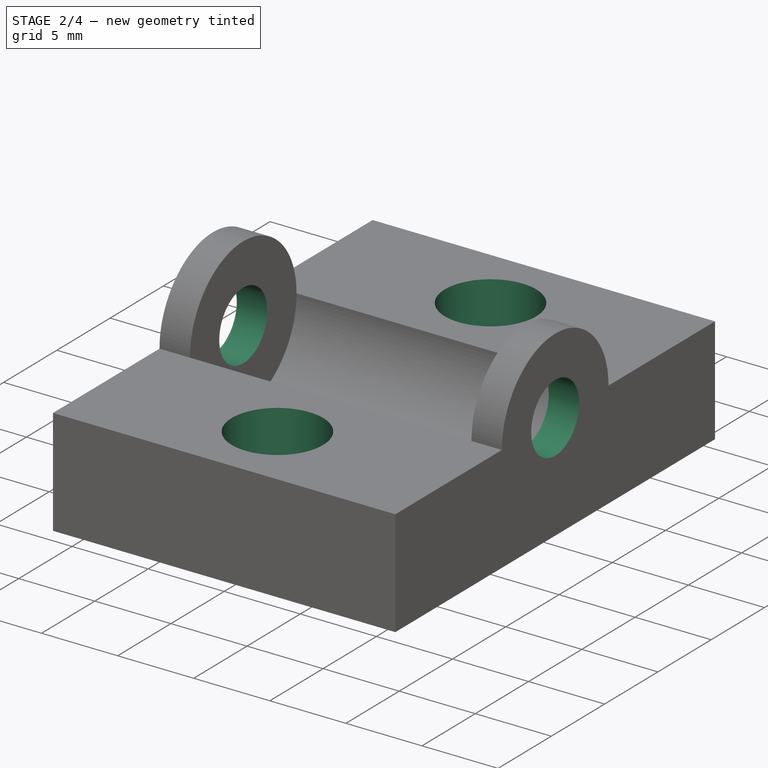
[diagram: stage 2 of 4 — iso view after this stage's code; geometry added in this stage tinted green]
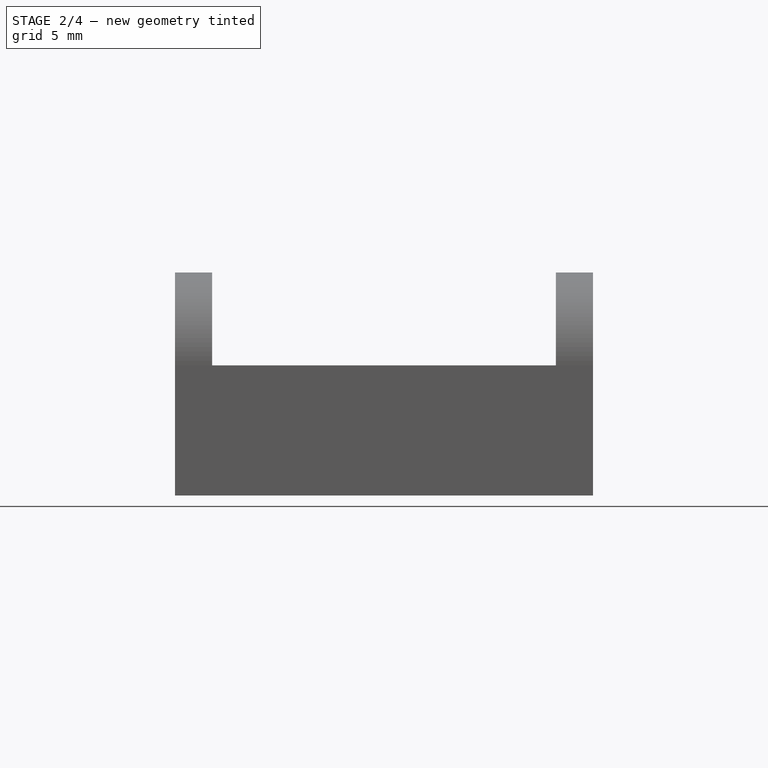
[diagram: stage 2 of 4 — front view after this stage's code; geometry added in this stage tinted green]
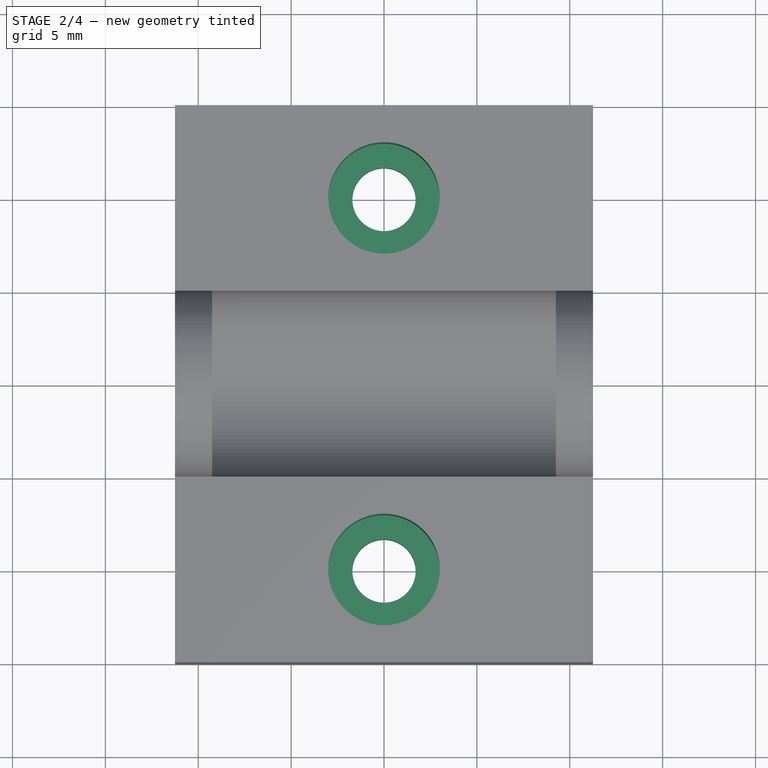
[diagram: stage 2 of 4 — top view after this stage's code; geometry added in this stage tinted green]
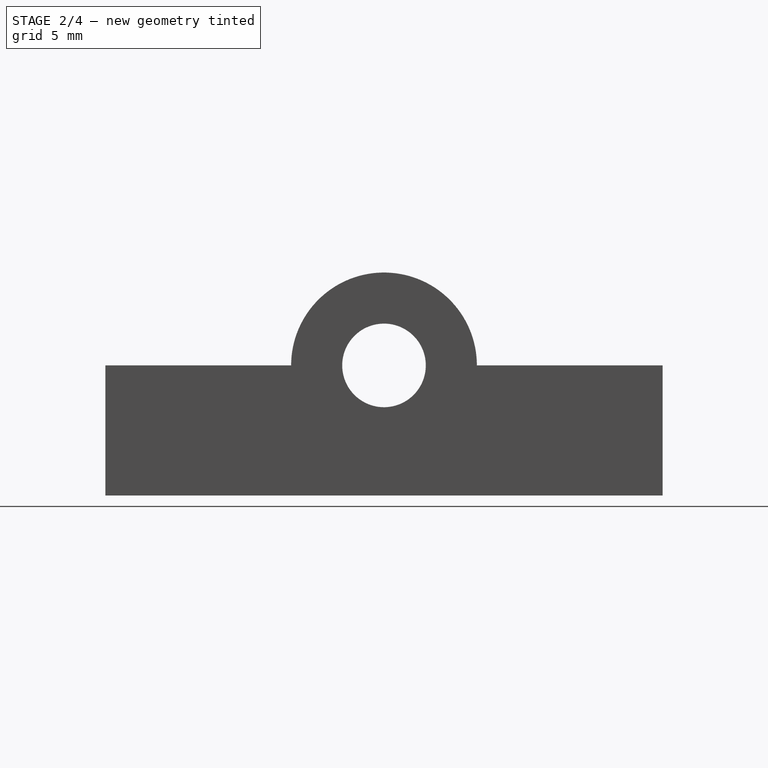
[diagram: stage 2 of 4 — right view after this stage's code; geometry added in this stage tinted green]
FEATURE [PartDesign::CoordinateSystem] Local_CS005  label="LCS_Bottom001"
  AttacherType = Attacher::AttachEngine3D
  AttachmentSupport = -> [X_Axis003]
  MapMode = 2
FEATURE [PartDesign::Body] OffsetBlockHorizonShade
  AllowCompound = false
  Group = -> [Sketch007,Sketch008,Pad003,Hole003,Local_CS005,DatumPlane004]
  Origin = -> Origin003
  Tip = -> Hole003
FEATURE [PartDesign::Hole] Hole004
  BaseFeature = -> Hole001
  CustomThreadClearance = 0
  Depth = 25
  DepthType = 0
  Diameter = 6
  DrillForDepth = false
  DrillPoint = 1
  DrillPointAngle = 118
  HoleCutCountersinkAngle = 90
  HoleCutCustomValues = false
  HoleCutDepth = 0
  HoleCutDiameter = 6.1
  HoleCutType = 0
  ModelThread = false
  Placement = pos=(0,0,0) rot=(1,1,1;2.0944rad)
  Profile = -> Sketch004
  Reversed = true
  Suppressed = false
  Tapered = false
  TaperedAngle = 90
  ThreadClass = 0
  ThreadDepth = 25
  ThreadDepthType = 0
  ThreadDirection = 0
  ThreadFit = 0
  ThreadSize = 0
  ThreadType = 0
  Threaded = false
  UseCustomThreadClearance = false
FEATURE [PartDesign::Hole] Hole
  BaseFeature = -> Pad003
  CustomThreadClearance = 0
  Depth = 21.5677
  DepthType = 1
  Diameter = 4.5
  DrillForDepth = false
  DrillPoint = 1
  DrillPointAngle = 118
  HoleCutCountersinkAngle = 90
  HoleCutCustomValues = false
  HoleCutDepth = 0
  HoleCutDiameter = 6.1
  HoleCutType = 0
  ModelThread = false
  Profile = -> Sketch006
  Reversed = true
  Suppressed = false
  Tapered = false
  TaperedAngle = 90
  ThreadClass = 0
  ThreadDepth = 21.5677
  ThreadDepthType = 0
  ThreadDirection = 0
  ThreadFit = 0
  ThreadSize = 11
  ThreadType = 1
  Threaded = false
  UseCustomThreadClearance = false
FEATURE [PartDesign::SubShapeBinder] Binder005
  BindCopyOnChange = 0
  BindMode = 0
  ClaimChildren = false
  Context = -> Body005 [Binder005.]
  Fuse = false
  MakeFace = true
  OffsetFill = false
  OffsetIntersection = false
  OffsetJoinType = 0
  OffsetOpenResult = false
  PartialLoad = false
  Relative = true
  Support = -> [Body002[DatumLine.]]
  _Version = 2
FEATURE [PartDesign::PolarPattern] PolarPattern001
  Angle = 360
  Axis = -> Binder005 [Edge1]
  BaseFeature = -> Pocket
  Mode = 0
  Occurrences = 4
  Offset = 120
  Originals = -> [Pocket]
  Suppressed = false
  TransformMode = 0
FEATURE [PartDesign::Body] Body005  label="ShadeStencil"
  AllowCompound = false
  Group = -> [Binder,Pad008,Sketch012,Pocket,Binder005,PolarPattern001]
  Origin = -> Origin006
  Tip = -> PolarPattern001
FEATURE [Sketcher::SketchObject] Sketch013
  ArcFitTolerance = 0
  AttachmentSupport = -> [DatumPlane003]
  ExternalGeometry = -> [Sketch003,Sketch011]
  FullyConstrained = true
  MakeInternals = false
  MapMode = 5
  sketch-geometry (9):
    g0: LineSegment StartX=-45.732 StartY=24.4867 StartZ=0 EndX=-41.182 EndY=27.1136 EndZ=0
    g1: LineSegment StartX=-45.732 StartY=24.4867 StartZ=0 EndX=-45.732 EndY=17.8773 EndZ=0
    g2: LineSegment StartX=-45.732 StartY=17.8773 StartZ=0 EndX=-41.182 EndY=15.2503 EndZ=0
    g3: LineSegment StartX=-41.182 StartY=27.1136 StartZ=0 EndX=-41.182 EndY=15.2503 EndZ=0
    g4: GeomPoint [constr] X=-45.732 Y=21.182 Z=0
    g5: GeomPoint [constr] X=-41.182 Y=21.182 Z=0
    g6: GeomPoint [constr] X=-42.582 Y=21.182 Z=0
    g7: GeomPoint [constr] X=-44.732 Y=17.2999 Z=0
    g8: LineSegment [constr] StartX=-43.732 StartY=19.032 StartZ=0 EndX=-44.732 EndY=17.2999 EndZ=0
  constraints (19):
    c: Coincident(g1,g0)
    c: Vertical(g1)
    c: Coincident(g2,g1)
    c: PointOnObject(g0,g-3)
    c: PointOnObject(g2,g-3)
    c: DistanceX(g0,g-5) = 2
    c: Coincident(g3,g0)
    c: Coincident(g3,g2)
    c: Symmetric(g-5,g-7,g6)
    c: Symmetric(g0,g2,g5)
    c: Symmetric(g0,g1,g4)
    c: Horizontal(g4,g6)
    c: Horizontal(g6,g5)
    c: Angle(g0,g3) = 1.0472
    c: PointOnObject(g7,g2)
    c: Distance(g7,g-6) = 2
    c: Coincident(g8,g-6)
    c: Coincident(g8,g7)
    c: Perpendicular(g2,g8)
FEATURE [PartDesign::Pad] Pad009
  BaseFeature = -> Pad005
  Direction = (0,0,1)
  Length = 10
  Length2 = 10
  Profile = -> Sketch013
  ReferenceAxis = -> Sketch013 [N_Axis]
  Suppressed = false
  Type = 3
  UpToFace = -> DatumPlane002
FEATURE [PartDesign::Pocket] Pocket001
  BaseFeature = -> Pad009
  Direction = (0,0,-1)
  Length = 5
  Length2 = 5
  Profile = -> Sketch011
  ReferenceAxis = -> Sketch011 [N_Axis]
  Suppressed = false
  Type = 1
FEATURE [PartDesign::PolarPattern] PolarPattern
  Angle = 360
  Axis = -> DatumLine
  BaseFeature = -> Pocket001
  Mode = 0
  Occurrences = 4
  Offset = 120
  Originals = -> [Pad009,Pocket001]
  Refine = true
  Reversed = true
  Suppressed = false
  TransformMode = 0
FEATURE [PartDesign::CoordinateSystem] Local_CS005  label="LCS_Clip1"
  AttacherType = Attacher::AttachEngine3D
  AttachmentSupport = -> [Sketch011]
  MapMode = 1
  Placement = pos=(-42.582,21.182,1) rot=(0,0,1;0rad)
FEATURE [PartDesign::Body] Body002  label="ShadeFrameBase"
  AllowCompound = false
  Group = -> [DatumPlane002,DatumPlane003,Sketch003,DatumLine,Sketch008,Sketch009,Sketch010,Pad005,Sketch011,Sketch013,Pad009,Pocket001,PolarPattern,Local_CS005]
  Origin = -> Origin002
  Tip = -> PolarPattern
FEATURE [PartDesign::FeatureBase] BaseFeature
  BaseFeature = -> Body002
  Suppressed = false
FEATURE [PartDesign::Pad] Pad007
  BaseFeature = -> BaseFeature
  Direction = (0,0,1)
  Length = 6
  Length2 = 10
  Profile = -> Binder004
  Reversed = true
  Suppressed = false
  Type = 0
  expr: Length = <<Dimensions>>.shade_spacer_length
FEATURE [PartDesign::Hole] Hole001
  BaseFeature = -> Pad007
  CustomThreadClearance = 0
  Depth = 135.934
  DepthType = 1
  Diameter = 4.5
  DrillForDepth = false
  DrillPoint = 1
  DrillPointAngle = 118
  HoleCutCountersinkAngle = 90
  HoleCutCustomValues = false
  HoleCutDepth = 0
  HoleCutDiameter = 6.1
  HoleCutType = 0
  ModelThread = false
  Profile = -> Binder003
  Suppressed = false
  Tapered = false
  TaperedAngle = 90
  ThreadClass = 0
  ThreadDepth = 135.934
  ThreadDepthType = 0
  ThreadDirection = 0
  ThreadFit = 0
  ThreadSize = 11
  ThreadType = 1
  Threaded = false
  UseCustomThreadClearance = false
  expr: ThreadSize = <<Dimensions>>.shade_shaft_type
FEATURE [PartDesign::Body] Body004  label="ShadeFrameBottom"
  AllowCompound = false
  BaseFeature = -> Body002
  Group = -> [BaseFeature,Binder003,Binder004,Pad007,Hole001,Local_CS002,Local_CS003]
  Origin = -> Origin005
  Tip = -> Hole001
FEATURE [PartDesign::FeatureBase] BaseFeature001
  BaseFeature = -> Body002
  Suppressed = false
FEATURE [PartDesign::CoordinateSystem] LCS_Origin001
  AttacherType = Attacher::AttachEngine3D
  AttachmentSupport = -> [X_Axis]
  MapMode = 2
FEATURE [PartDesign::Body] Body  label="Clip"
  AllowCompound = false
  Group = -> [Sketch,Pad,Mirrored,Chamfer,LCS_Origin001]
  Origin = -> Origin
  Tip = -> Chamfer
FEATURE [PartDesign::CoordinateSystem] Local_CS006  label="LCS_Clip"
  AttacherType = Attacher::AttachEngine3D
  AttachmentSupport = -> [Local_CS005]
  MapMode = 2
  Placement = pos=(-42.582,21.182,1) rot=(0,0,1;0rad)
FEATURE [App::Link] Clip  label="Clip001"
  AttachedBy = #LCS_Origin001
  AttachedTo = FilterFrameTop#Local_CS006
  LinkPlacement = pos=(-42.582,21.182,7) rot=(0,0,1;0rad)
  LinkedObject = -> Body
  Placement = pos=(-42.582,21.182,7) rot=(0,0,1;0rad)
  SolverId = Asm4EE
  expr: Placement = FilterFrameTop.Placement * Local_CS006.Placement * AttachmentOffset * LCS_Origin001.Placement ^ -1
FEATURE [PartDesign::CoordinateSystem] Local_CS007  label="LCS_Center"
  AttacherType = Attacher::AttachEngine3D
  AttachmentSupport = -> [DatumLine]
  MapMode = 2
  Placement = pos=(-21.182,21.182,0) rot=(0,0,1;3.14159rad)
FEATURE [PartDesign::Body] Body001  label="ShadeFrameTop"
  AllowCompound = false
  BaseFeature = -> Body002
  Group = -> [BaseFeature001,DatumPlane,DatumPlane001,Local_CS006,Local_CS007]
  Origin = -> Origin001
  Tip = -> BaseFeature001
FEATURE [App::DocumentObjectGroup] Parts
  Group = -> [Body,Body001,Body002,Body003,Body004,Body005]
FEATURE [PartDesign::CoordinateSystem] FilterFrameTop_LCS_Center
  AttachedBy = Origin
  AttacherType = Attacher::AttachEngine3D
  Placement = pos=(-21.182,21.182,6) rot=(0,0,1;3.14159rad)
  SolverId = Asm4EE
  expr: Placement = FilterFrameTop.Placement * Local_CS007.Placement
FEATURE [Part::FeaturePython] Circular_Clip  label="Circular_Clip001"  # Draft array (typed FeaturePython)
  AngleStep = 90
  ArrayType = Circular Array
  Axis = -> FilterFrameTop_LCS_Center
  AxisPlacement = pos=(-21.182,21.182,6) rot=(0,0,1;3.14159rad)
  Count = 4
  Index = 1
  PlacementList = 4 placements: [(-42.582,21.182,7),(-21.182,-0.218019,7),(0.218019,21.182,7),(-21.182,42.582,7)]
  Placer = pos=(0,0,0) rot=(0,0,1;1.5708rad)
  ScaleList = (4) [(1,1,1),(1,1,1),(1,1,1),(1,1,1)]
  Scaler = 1
  ShowElement = false
  SourceObject = -> Clip
  expr: .Placer.Rotation.Angle = AngleStep * Index
  expr: AngleStep = 360 / Count
FEATURE [App::Part] Assembly
  AssemblyType = Part::Link
  Group = -> [LCS_Origin,Constraints,Variables,Configurations,FilterFrameTop,FilterFrameBottom,FilterFrameBottom_LCS_ShaftBottom,FilterFrameBottom_LCS_ShaftTop,Clip,FilterFrameTop_LCS_Center,Circular_Clip]
  Origin = -> Origin004
  Type = Assembly
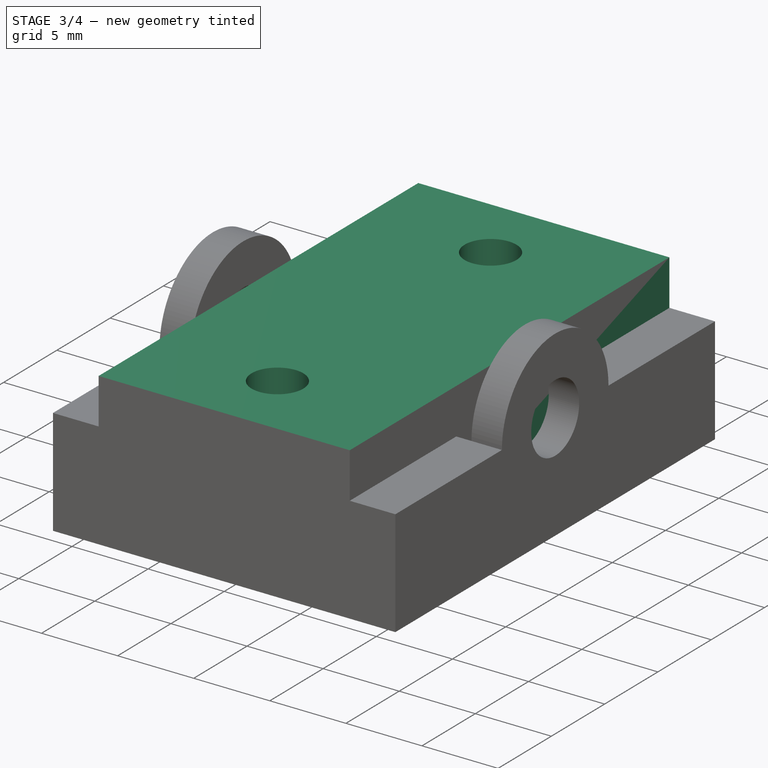
[diagram: stage 3 of 4 — iso view after this stage's code; geometry added in this stage tinted green]
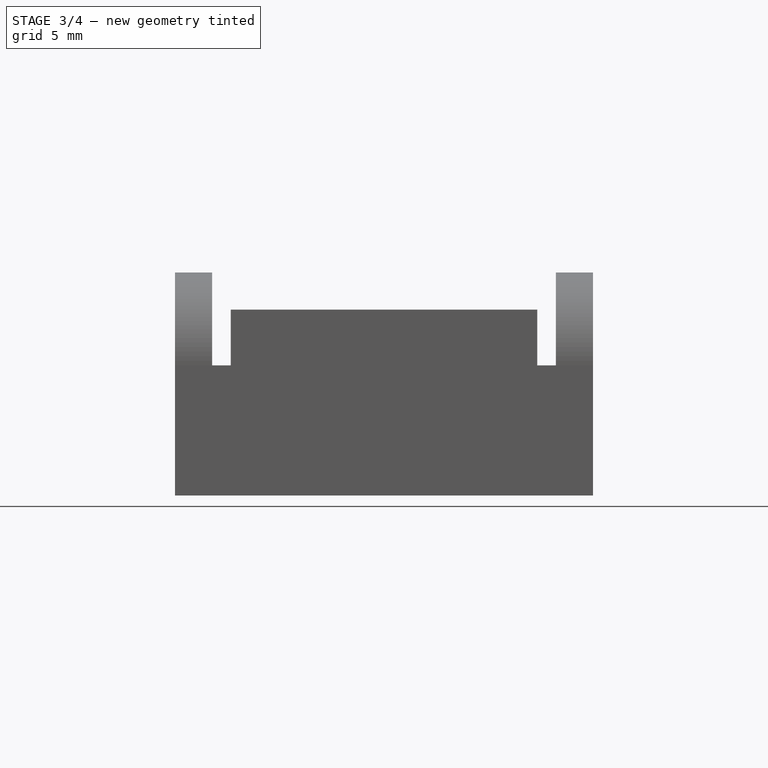
[diagram: stage 3 of 4 — front view after this stage's code; geometry added in this stage tinted green]
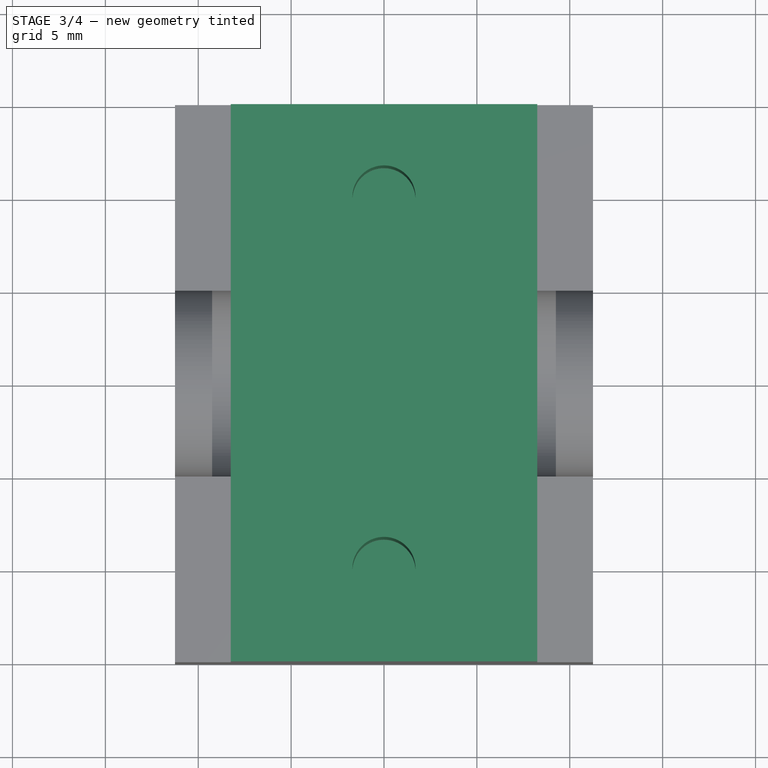
[diagram: stage 3 of 4 — top view after this stage's code; geometry added in this stage tinted green]
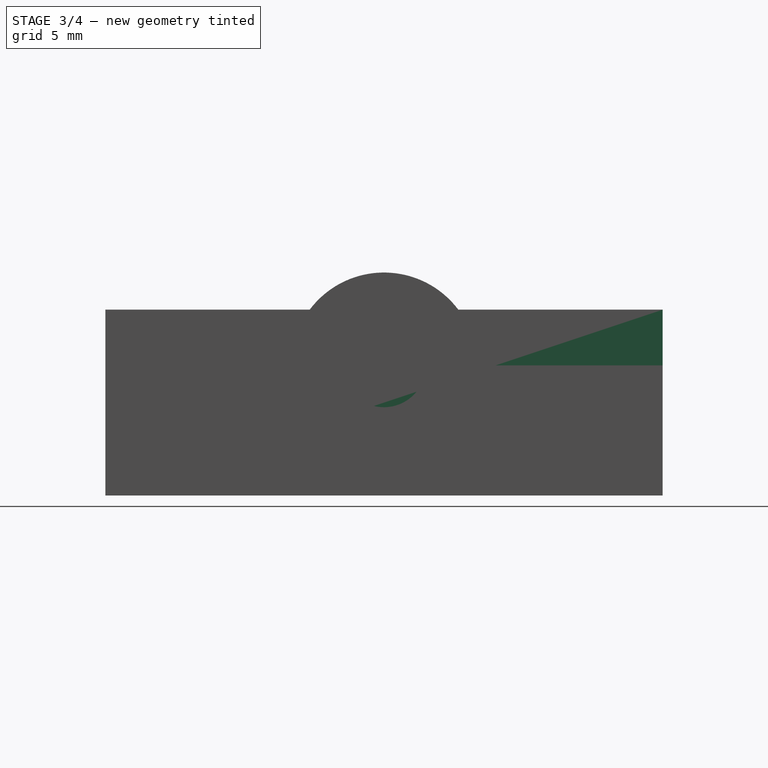
[diagram: stage 3 of 4 — right view after this stage's code; geometry added in this stage tinted green]
FEATURE [Sketcher::SketchObject] Sketch003
  ArcFitTolerance = 0
  AttachmentSupport = -> [YZ_Plane001]
  ExternalGeometry = -> [Sketch001]
  FullyConstrained = true
  MakeInternals = false
  MapMode = 5
  Placement = pos=(0,0,0) rot=(0.57735,0.57735,0.57735;2.0944rad)
  sketch-geometry (1):
    g0: Circle CenterX=0 CenterY=7 CenterZ=0 NormalX=0 NormalY=0 NormalZ=1 AngleXU=0 Radius=5
  constraints (2):
    c: Coincident(g0,g-3)
    c: PointOnObject(g-3,g0)
FEATURE [PartDesign::Pocket] Pocket
  BaseFeature = -> Pad001
  Direction = (-1,0,0)
  Length = 0
  Length2 = 5
  Placement = pos=(0,0,0) rot=(1,1,1;2.0944rad)
  Profile = -> Sketch003
  ReferenceAxis = -> Sketch003 [N_Axis]
  Suppressed = false
  Type = 3
  UpToFace = -> DatumPlane
FEATURE [PartDesign::Mirrored] Mirrored
  BaseFeature = -> Pocket
  MirrorPlane = -> YZ_Plane001
  Originals = -> [Pad001,Pocket]
  Placement = pos=(0,0,0) rot=(1,1,1;2.0944rad)
  Refine = true
  Suppressed = false
  TransformMode = 0
FEATURE [PartDesign::Plane] DatumPlane002  label="PlaneBaseTop"
  AttachmentOffset = pos=(0,0,2) rot=(0,0,1;0rad)
  AttachmentSupport = -> [XY_Plane001]
  Length = 60
  MapMode = 2
  Placement = pos=(0,0,2) rot=(0,0,1;0rad)
  ResizeMode = 0
  Width = 60
FEATURE [Sketcher::SketchObject] Sketch004  label="SketchAttachmentHoles"
  ArcFitTolerance = 0
  AttachmentSupport = -> [DatumPlane002]
  FullyConstrained = true
  MakeInternals = false
  MapMode = 5
  Placement = pos=(0,0,2) rot=(0,0,1;0rad)
  sketch-geometry (2):
    g0: Circle CenterX=-6e-16 CenterY=-10 CenterZ=0 NormalX=0 NormalY=0 NormalZ=1 AngleXU=0 Radius=1.5
    g1: Circle CenterX=0 CenterY=10 CenterZ=0 NormalX=0 NormalY=0 NormalZ=1 AngleXU=0 Radius=1.5
  constraints (5):
    c: Symmetric(g0,g1,g-1)
    c: Equal(g1,g0)
    c: Diameter(g1) = 3
    c: Distance(g-1,g1) = 10
    c: PointOnObject(g1,g-2)
FEATURE [PartDesign::Hole] Hole
  BaseFeature = -> Mirrored
  CustomThreadClearance = 0
  Depth = 25
  DepthType = 0
  Diameter = 3.4
  DrillForDepth = false
  DrillPoint = 1
  DrillPointAngle = 118
  HoleCutCountersinkAngle = 90
  HoleCutCustomValues = false
  HoleCutDepth = 0
  HoleCutDiameter = 6
  HoleCutType = 0
  ModelThread = false
  Placement = pos=(0,0,0) rot=(1,1,1;2.0944rad)
  Profile = -> Sketch004
  Suppressed = false
  Tapered = false
  TaperedAngle = 90
  ThreadClass = 0
  ThreadDepth = 25
  ThreadDepthType = 0
  ThreadDirection = 0
  ThreadFit = 0
  ThreadSize = 9
  ThreadType = 1
  Threaded = false
  UseCustomThreadClearance = false
FEATURE [PartDesign::Hole] Hole001
  BaseFeature = -> Hole
  CustomThreadClearance = 0
  Depth = 25
  DepthType = 0
  Diameter = 4.5
  DrillForDepth = false
  DrillPoint = 1
  DrillPointAngle = 118
  HoleCutCountersinkAngle = 90
  HoleCutCustomValues = false
  HoleCutDepth = 0
  HoleCutDiameter = 6.1
  HoleCutType = 0
  ModelThread = false
  Placement = pos=(0,0,0) rot=(1,1,1;2.0944rad)
  Profile = -> Sketch002
  Suppressed = false
  Tapered = false
  TaperedAngle = 90
  ThreadClass = 0
  ThreadDepth = 25
  ThreadDepthType = 0
  ThreadDirection = 0
  ThreadFit = 0
  ThreadSize = 11
  ThreadType = 1
  Threaded = false
  UseCustomThreadClearance = false
FEATURE [Sketcher::SketchObject] Sketch005
  ArcFitTolerance = 0
  AttachmentSupport = -> [XY_Plane002]
  FullyConstrained = true
  MakeInternals = false
  MapMode = 5
  sketch-geometry (4):
    g0: LineSegment StartX=-8.25 StartY=15 StartZ=0 EndX=8.25 EndY=15 EndZ=0
    g1: LineSegment StartX=8.25 StartY=15 StartZ=0 EndX=8.25 EndY=-15 EndZ=0
    g2: LineSegment StartX=8.25 StartY=-15 StartZ=0 EndX=-8.25 EndY=-15 EndZ=0
    g3: LineSegment StartX=-8.25 StartY=-15 StartZ=0 EndX=-8.25 EndY=15 EndZ=0
  constraints (11):
    c: Coincident(g0,g1)
    c: Coincident(g1,g2)
    c: Coincident(g2,g3)
    c: Coincident(g3,g0)
    c: Horizontal(g0)
    c: Horizontal(g2)
    c: Vertical(g1)
    c: Vertical(g3)
    c: Symmetric(g1,g0,g-1)
    c: Distance(g2) = 16.5
    c: Distance(g3) = 30
FEATURE [Sketcher::SketchObject] Sketch006
  ArcFitTolerance = 0
  AttachmentSupport = -> [XY_Plane002]
  FullyConstrained = true
  MakeInternals = false
  MapMode = 5
  sketch-geometry (2):
    g0: Circle CenterX=0 CenterY=10 CenterZ=0 NormalX=0 NormalY=0 NormalZ=1 AngleXU=0 Radius=1.5
    g1: Circle CenterX=0 CenterY=-10 CenterZ=0 NormalX=0 NormalY=0 NormalZ=1 AngleXU=0 Radius=1.5
  constraints (5):
    c: Symmetric(g0,g1,g-1)
    c: Equal(g1,g0)
    c: Diameter(g1) = 3
    c: Distance(g0,g1) = 20
    c: PointOnObject(g0,g-2)
FEATURE [PartDesign::CoordinateSystem] Local_CS004  label="LCS_Bottom"
  AttacherType = Attacher::AttachEngine3D
  AttachmentSupport = -> [X_Axis002]
  MapMode = 2
FEATURE [PartDesign::Plane] DatumPlane003  label="Plane_Top"
  AttachmentOffset = pos=(0,0,1) rot=(0,0,1;0rad)
  AttachmentSupport = -> [XY_Plane002]
  Length = 60
  MapMode = 5
  Placement = pos=(0,0,1) rot=(0,0,1;0rad)
  ResizeMode = 0
  Width = 60
FEATURE [PartDesign::Pad] Pad002
  Direction = (0,0,1)
  Length = 10
  Length2 = 10
  Profile = -> Sketch005
  ReferenceAxis = -> Sketch005 [N_Axis]
  Suppressed = false
  Type = 3
  UpToFace = -> DatumPlane003 [Plane]
FEATURE [PartDesign::Body] Body001  label="OffsetBlockIndexShade"
  AllowCompound = false
  Group = -> [Sketch005,Sketch006,Pad002,Hole002,Local_CS004,DatumPlane003]
  Origin = -> Origin002
  Tip = -> Hole002
FEATURE [Sketcher::SketchObject] Sketch007
  ArcFitTolerance = 0
  AttachmentSupport = -> [XY_Plane003]
  FullyConstrained = true
  MakeInternals = false
  MapMode = 5
  sketch-geometry (2):
    g0: Circle CenterX=0 CenterY=10 CenterZ=0 NormalX=0 NormalY=0 NormalZ=1 AngleXU=0 Radius=1.5
    g1: Circle CenterX=0 CenterY=-10 CenterZ=0 NormalX=0 NormalY=0 NormalZ=1 AngleXU=0 Radius=1.5
  constraints (5):
    c: Equal(g0,g1)
    c: Diameter(g0) = 3
    c: Symmetric(g1,g0,g-1)
    c: Distance(g0,g1) = 20
    c: PointOnObject(g0,g-2)
FEATURE [Sketcher::SketchObject] Sketch008
  ArcFitTolerance = 0
  AttachmentSupport = -> [XY_Plane003]
  FullyConstrained = true
  MakeInternals = false
  MapMode = 5
  sketch-geometry (4):
    g0: LineSegment StartX=-8.25 StartY=15 StartZ=0 EndX=8.25 EndY=15 EndZ=0
    g1: LineSegment StartX=8.25 StartY=15 StartZ=0 EndX=8.25 EndY=-15 EndZ=0
    g2: LineSegment StartX=8.25 StartY=-15 StartZ=0 EndX=-8.25 EndY=-15 EndZ=0
    g3: LineSegment StartX=-8.25 StartY=-15 StartZ=0 EndX=-8.25 EndY=15 EndZ=0
  constraints (11):
    c: Coincident(g0,g1)
    c: Coincident(g1,g2)
    c: Coincident(g2,g3)
    c: Coincident(g3,g0)
    c: Horizontal(g0)
    c: Horizontal(g2)
    c: Vertical(g1)
    c: Vertical(g3)
    c: Symmetric(g1,g0,g-1)
    c: Distance(g3) = 30
    c: Distance(g0) = 16.5
FEATURE [PartDesign::Plane] DatumPlane004  label="Plane_Top001"
  AttachmentOffset = pos=(0,0,10) rot=(0,0,1;0rad)
  AttachmentSupport = -> [XY_Plane003]
  Length = 60
  MapMode = 5
  Placement = pos=(0,0,10) rot=(0,0,1;0rad)
  ResizeMode = 0
  Width = 60
FEATURE [PartDesign::Pad] Pad003
  Direction = (0,0,1)
  Length = 10
  Length2 = 10
  Profile = -> Sketch008
  ReferenceAxis = -> Sketch008 [N_Axis]
  Suppressed = false
  Type = 3
  UpToFace = -> DatumPlane004 [Plane]
FEATURE [PartDesign::Hole] Hole003
  BaseFeature = -> Pad003
  CustomThreadClearance = 0
  Depth = 25
  DepthType = 0
  Diameter = 3.4
  DrillForDepth = false
  DrillPoint = 1
  DrillPointAngle = 118
  HoleCutCountersinkAngle = 90
  HoleCutCustomValues = false
  HoleCutDepth = 0
  HoleCutDiameter = 6.1
  HoleCutType = 0
  ModelThread = false
  Profile = -> Sketch007
  Reversed = true
  Suppressed = false
  Tapered = false
  TaperedAngle = 90
  ThreadClass = 0
  ThreadDepth = 25
  ThreadDepthType = 0
  ThreadDirection = 0
  ThreadFit = 0
  ThreadSize = 9
  ThreadType = 1
  Threaded = false
  UseCustomThreadClearance = false
FEATURE [PartDesign::Plane] DatumPlane  label="Plane_Bottom"
  AttachmentSupport = -> [XY_Plane001]
  Length = 60
  MapMode = 5
  ResizeMode = 0
  Width = 60
FEATURE [PartDesign::Plane] DatumPlane001  label="Plane_Top"
  AttachmentOffset = pos=(0,0,1) rot=(0,0,1;0rad)
  AttachmentSupport = -> [DatumPlane]
  Length = 60
  MapMode = 5
  Placement = pos=(0,0,1) rot=(0,0,1;0rad)
  ResizeMode = 0
  Width = 60
FEATURE [App::Link] Link  label="Dimensions"
  LinkedObject = -> <external Resources.FCStd>#Spreadsheet
FEATURE [PartDesign::Plane] DatumPlane003  label="Plane_Bottom001"
  AttachmentSupport = -> [XY_Plane002]
  Length = 60
  MapMode = 5
  ResizeMode = 0
  Width = 60
FEATURE [PartDesign::Plane] DatumPlane002  label="Plane_Top001"
  AttachmentOffset = pos=(0,0,1) rot=(0,0,1;0rad)
  AttachmentSupport = -> [DatumPlane003]
  Length = 60
  MapMode = 5
  Placement = pos=(0,0,1) rot=(0,0,1;0rad)
  ResizeMode = 0
  Width = 60
  expr: .AttachmentOffset.Base.z = <<Dimensions>>.shade_frame_thickness / 2
FEATURE [Sketcher::SketchObject] Sketch006  label="Sketch_Shaft"
  ArcFitTolerance = 0
  AttachmentSupport = -> [XY_Plane003]
  FullyConstrained = true
  MakeInternals = false
  MapMode = 5
  expr: Constraints[1] = <<Dimensions>>.shade_shaft_diameter
  sketch-geometry (1):
    g0: Circle CenterX=0 CenterY=0 CenterZ=0 NormalX=0 NormalY=0 NormalZ=1 AngleXU=0 Radius=2
  constraints (2):
    c: Coincident(g0,g-1)
    c: Diameter(g0) = 4
FEATURE [Sketcher::SketchObject] Sketch007  label="Sketch_Spacer"
  ArcFitTolerance = 0
  AttachmentSupport = -> [XY_Plane003]
  FullyConstrained = true
  MakeInternals = false
  MapMode = 5
  expr: Constraints[1] = <<Dimensions>>.shade_shaft_diameter + 4 mm
  sketch-geometry (1):
    g0: Circle CenterX=0 CenterY=0 CenterZ=0 NormalX=0 NormalY=0 NormalZ=1 AngleXU=0 Radius=4
  constraints (2):
    c: Coincident(g0,g-1)
    c: Diameter(g0) = 8
FEATURE [PartDesign::Pad] Pad003
  Direction = (0,0,1)
  Length = 6
  Length2 = 10
  Profile = -> Sketch007
  ReferenceAxis = -> Sketch007 [N_Axis]
  Suppressed = false
  Type = 0
  expr: Length = <<Dimensions>>.shade_spacer_length
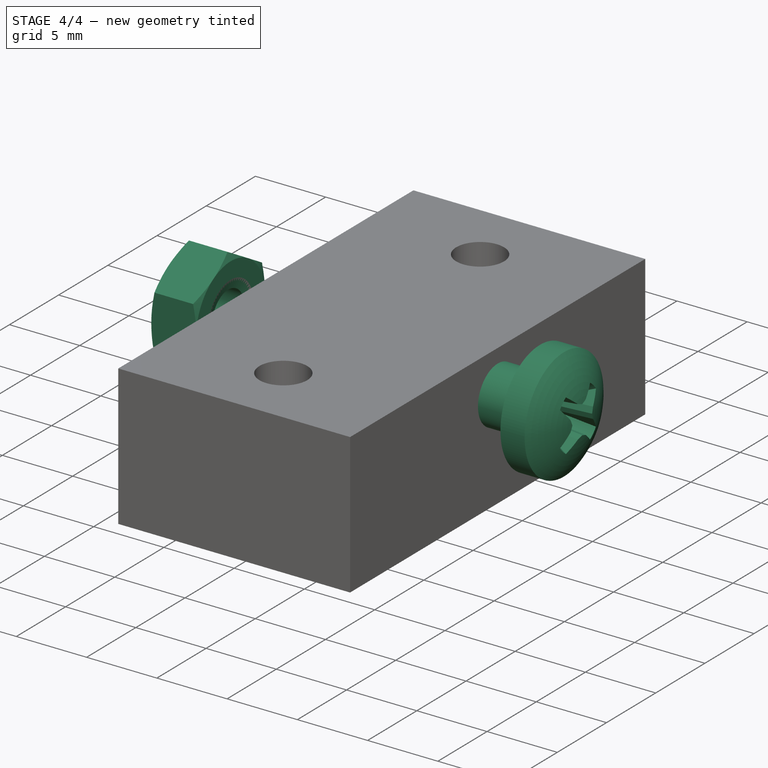
[diagram: stage 4 of 4 — iso view after this stage's code; geometry added in this stage tinted green]
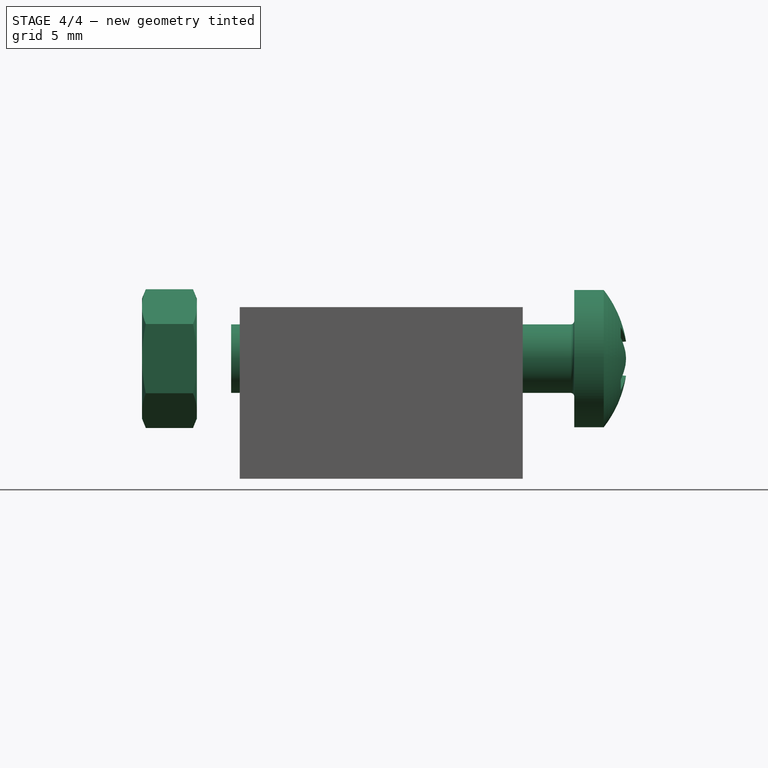
[diagram: stage 4 of 4 — front view after this stage's code; geometry added in this stage tinted green]
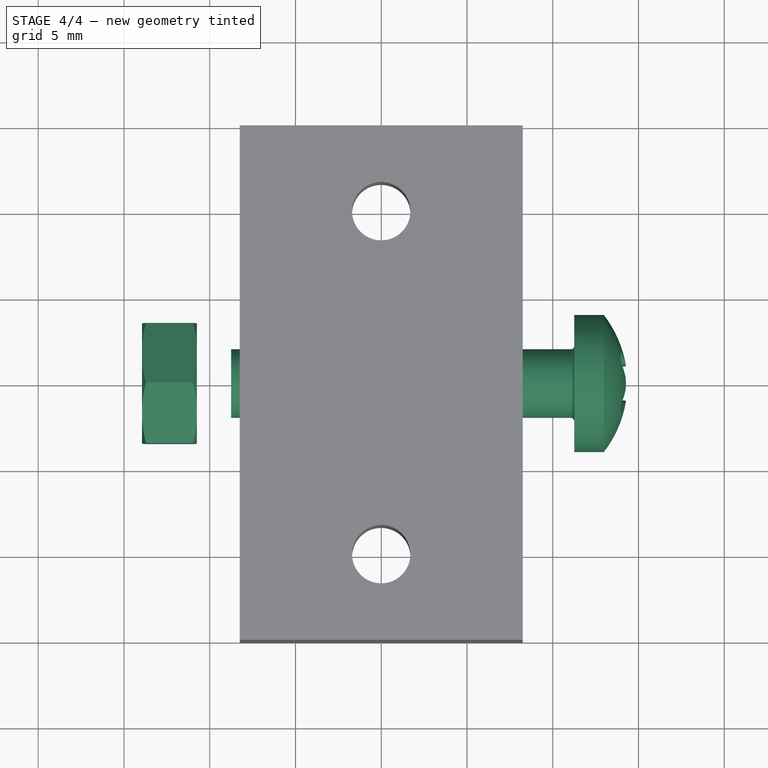
[diagram: stage 4 of 4 — top view after this stage's code; geometry added in this stage tinted green]
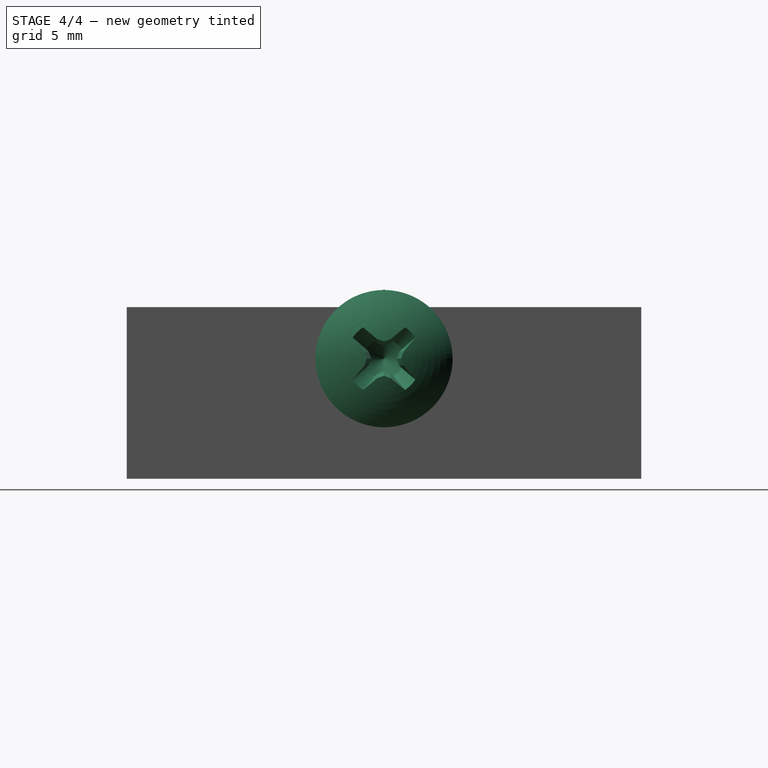
[diagram: stage 4 of 4 — right view after this stage's code; geometry added in this stage tinted green]
FEATURE [App::Link] Link  label="Dimensions"
  LinkedObject = -> <external Resources.FCStd>#Spreadsheet
FEATURE [PartDesign::CoordinateSystem] LCS_Origin
  AttacherType = Attacher::AttachEngine3D
  AttachmentSupport = -> [X_Axis]
  MapMode = 2
FEATURE [App::DocumentObjectGroup] Constraints
FEATURE [App::FeaturePython] Variables  # WARN: FeaturePython — macro-defined, semantics opaque (R4)
  Type = App::PropertyContainer
FEATURE [App::DocumentObjectGroup] Configurations
FEATURE [PartDesign::Plane] DatumPlane  label="PlaneSideInner"
  AttachmentOffset = pos=(0,0,9.25) rot=(0,0,1;0rad)
  AttachmentSupport = -> [YZ_Plane001]
  Length = 60
  MapMode = 5
  Placement = pos=(9.25,0,0) rot=(0.57735,0.57735,0.57735;2.0944rad)
  ResizeMode = 0
  Width = 60
  expr: .AttachmentOffset.Base.z = (1 + <<Dimensions>>.shade_amount) * <<Dimensions>>.shade_spacer_length / 2 + <<Dimensions>>.clearance_loose_fit
FEATURE [PartDesign::CoordinateSystem] Local_CS001  label="LCS_Origin001"
  AttacherType = Attacher::AttachEngine3D
  AttachmentSupport = -> [X_Axis001]
  MapMode = 2
FEATURE [App::Link] Attachment  label="Attachment001"
  AttachedBy = #Local_CS001
  AttachedTo = Parent Assembly#LCS_Origin
  LinkedObject = -> Body
  SolverId = Asm4EE
  expr: Placement = LCS_Origin.Placement * AttachmentOffset * Local_CS001.Placement ^ -1
FEATURE [App::Link] Spacer
  AttachedBy = #Local_CS001
  AttachedTo = Attachment#Local_CS
  LinkPlacement = pos=(3.25,0,7) rot=(0.707107,0,0.707107;3.14159rad)
  LinkedObject = -> <external Shade.FCStd>#Body003
  Placement = pos=(3.25,0,7) rot=(0.707107,0,0.707107;3.14159rad)
  SolverId = Asm4EE
  expr: Placement = Attachment.Placement * Local_CS.Placement * AttachmentOffset * Shade#Local_CS001.Placement ^ -1
FEATURE [Part::FeaturePython] Screw  label="M4x20-Screw"  # WARN: FeaturePython — macro-defined, semantics opaque (R4)
  AttachedBy = Origin
  AttachedTo = Attachment#Local_CS003
  Diameter = 6
  Invert = false
  LeftHanded = false
  Length = 7
  LengthCustom = 20
  MatchOuter = false
  OffsetAngle = 0
  Placement = pos=(11.25,0,7) rot=(0.707107,0,0.707107;3.14159rad)
  SolverId = Asm4EE
  Thread = false
  Type = 76
  expr: Placement = Attachment.Placement * Local_CS003.Placement * AttachmentOffset
FEATURE [Part::FeaturePython] Nut  label="M4-Nut"  # WARN: FeaturePython — macro-defined, semantics opaque (R4)
  AttachedBy = Origin
  AttachedTo = Attachment#Local_CS002
  Diameter = 6
  Invert = false
  LeftHanded = false
  MatchOuter = false
  OffsetAngle = 0
  Placement = pos=(-10.75,0,7) rot=(0,1,0;4.71239rad)
  SolverId = Asm4EE
  Thread = false
  Type = 31
  expr: Placement = Attachment.Placement * Local_CS002.Placement * AttachmentOffset
FEATURE [PartDesign::Hole] Hole002
  BaseFeature = -> Pad002
  CustomThreadClearance = 0
  Depth = 25
  DepthType = 0
  Diameter = 3.4
  DrillForDepth = false
  DrillPoint = 1
  DrillPointAngle = 118
  HoleCutCountersinkAngle = 90
  HoleCutCustomValues = false
  HoleCutDepth = 0
  HoleCutDiameter = 6.1
  HoleCutType = 0
  ModelThread = false
  Profile = -> Sketch006
  Reversed = true
  Suppressed = false
  Tapered = false
  TaperedAngle = 90
  ThreadClass = 0
  ThreadDepth = 25
  ThreadDepthType = 0
  ThreadDirection = 0
  ThreadFit = 0
  ThreadSize = 9
  ThreadType = 1
  Threaded = false
  UseCustomThreadClearance = false
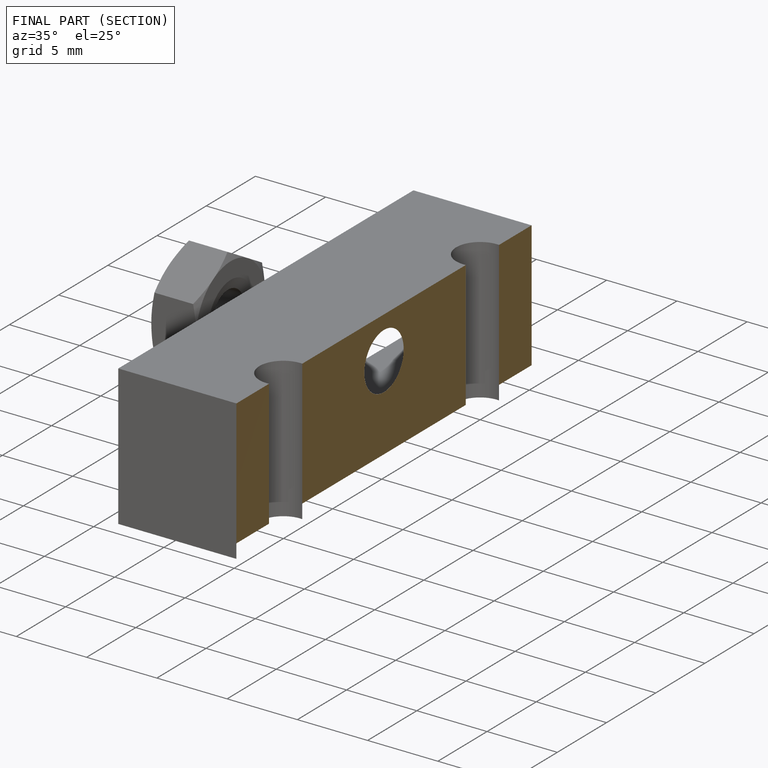
[diagram: finished part — half-section view (interior)]
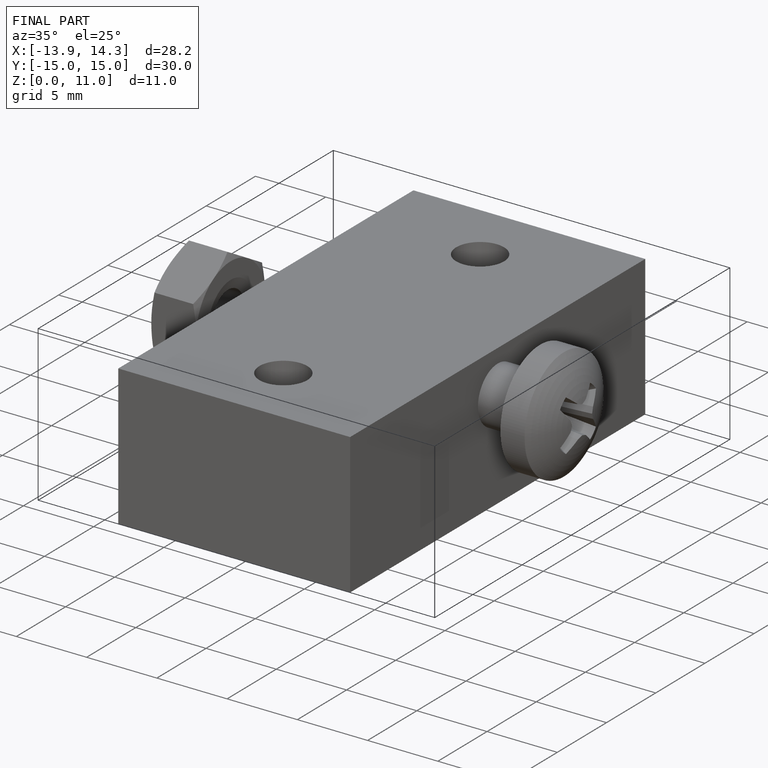
[diagram: finished part — iso view with bounding-box wireframe]
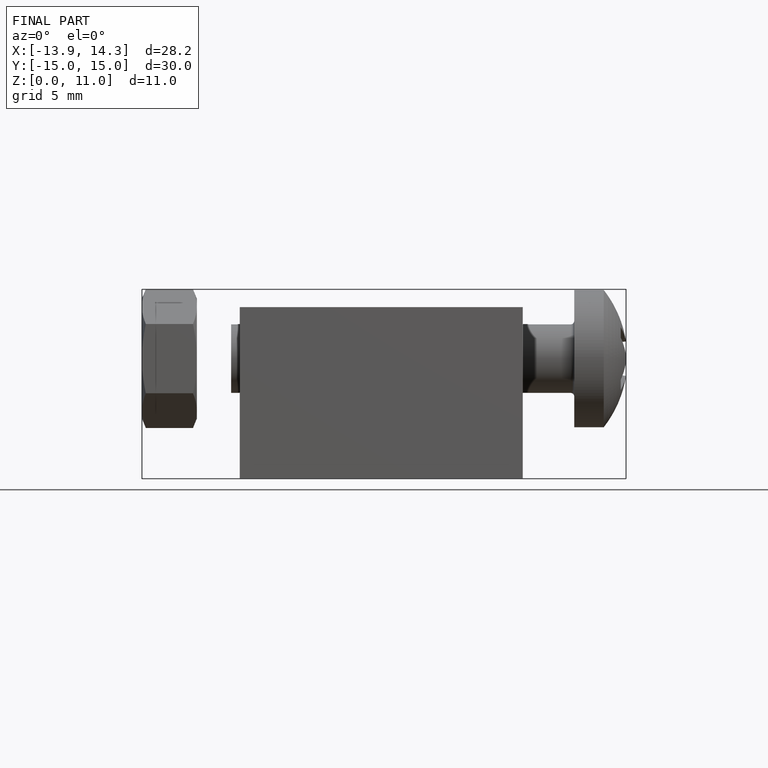
[diagram: finished part — front view with bounding-box wireframe]
